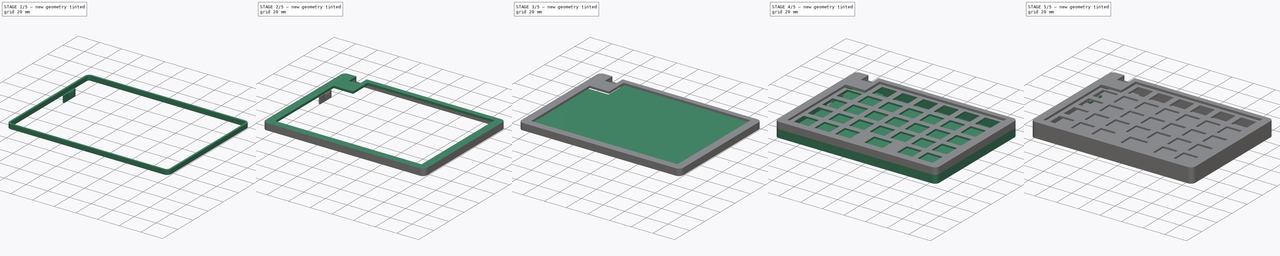
[diagram: build sequence overview — one tinted view per stage of 5, left to right]
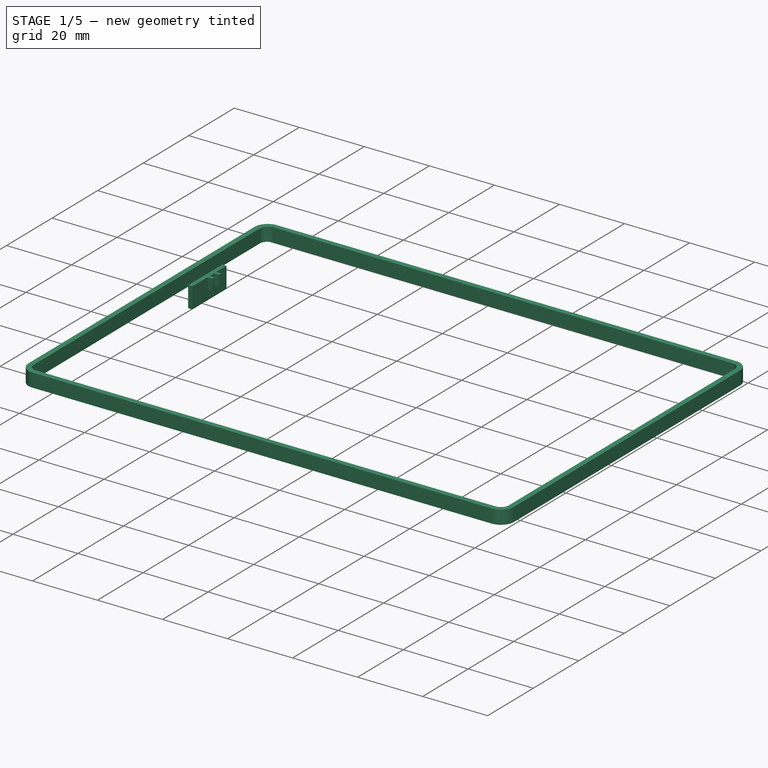
[diagram: stage 1 of 5 — iso view after this stage's code; geometry added in this stage tinted green]
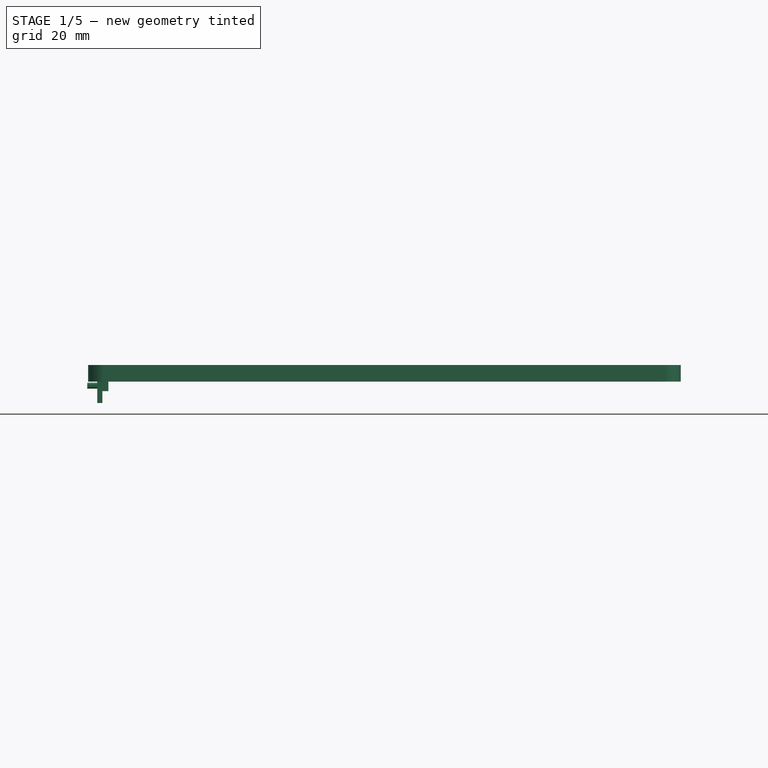
[diagram: stage 1 of 5 — front view after this stage's code; geometry added in this stage tinted green]
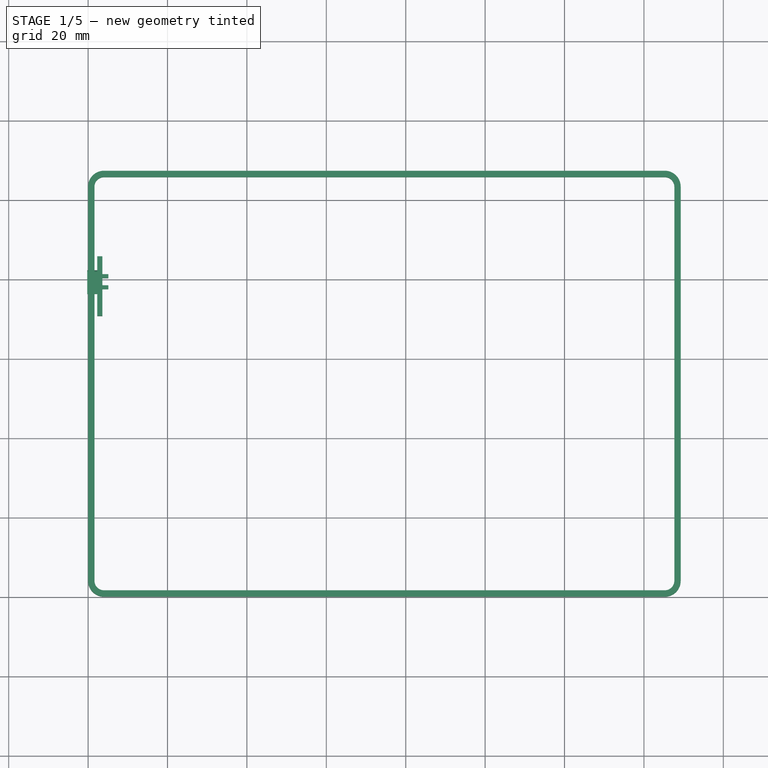
[diagram: stage 1 of 5 — top view after this stage's code; geometry added in this stage tinted green]
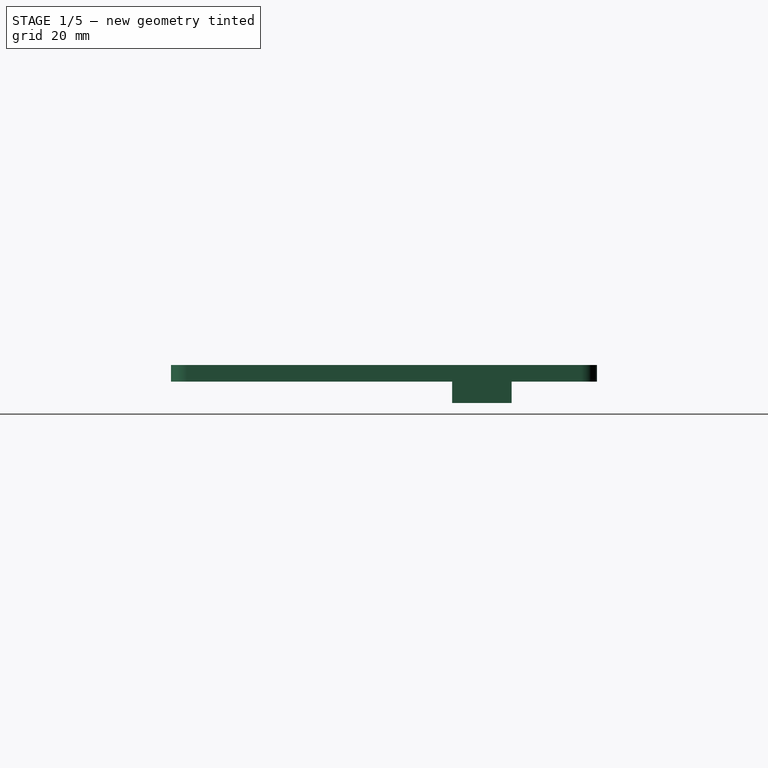
[diagram: stage 1 of 5 — right view after this stage's code; geometry added in this stage tinted green]
FCSTD DOCUMENT  (FreeCAD 1.0R39109 (Git))
Label: left_v3
License: All rights reserved
LicenseURL: https://en.wikipedia.org/wiki/All_rights_reserved
objects: Sketcher::SketchObject×21, PartDesign::Pad×13, Measure::MeasureDistance×11, PartDesign::Pocket×8, PartDesign::Body×4, PartDesign::Chamfer×3, Measure::MeasureLength×2, PartDesign::Fillet×1, App::DocumentObjectGroup×1
note: 121 computed .brp shape members not serialized (recipe doc carries the construction recipe); baked Part::Feature solids carry a one-line shape summary decoded from their .brp

FEATURE [Sketcher::SketchObject] Sketch011
  ArcFitTolerance = 1e-06
  AttachmentOffset = pos=(0,0,7.4) rot=(0,0,1;0rad)
  AttachmentSupport = -> [XY_Plane002]
  FullyConstrained = true
  MakeInternals = false
  MapMode = 5
  Placement = pos=(0,0,7.4) rot=(0,0,1;0rad)
  sketch-geometry (16):
    g0: LineSegment StartX=149.26 StartY=103.29 StartZ=0 EndX=149.26 EndY=4 EndZ=0
    g1: LineSegment StartX=0 StartY=103.29 StartZ=0 EndX=0 EndY=4 EndZ=0
    g2: ArcOfCircle CenterX=4 CenterY=4 CenterZ=0 NormalX=0 NormalY=0 NormalZ=1 AngleXU=0 Radius=4 StartAngle=3.14159 EndAngle=4.71239
    g3: ArcOfCircle CenterX=4 CenterY=103.29 CenterZ=0 NormalX=0 NormalY=0 NormalZ=1 AngleXU=0 Radius=4 StartAngle=1.5708 EndAngle=3.14159
    g4: ArcOfCircle CenterX=145.26 CenterY=103.29 CenterZ=0 NormalX=0 NormalY=0 NormalZ=1 AngleXU=0 Radius=4 StartAngle=1.3e-15 EndAngle=1.5708
    g5: ArcOfCircle CenterX=145.26 CenterY=4 CenterZ=0 NormalX=0 NormalY=0 NormalZ=1 AngleXU=0 Radius=4 StartAngle=4.71239 EndAngle=6.28319
    g6: LineSegment StartX=4 StartY=107.29 StartZ=0 EndX=145.26 EndY=107.29 EndZ=0
    g7: LineSegment StartX=4 StartY=0 StartZ=0 EndX=145.26 EndY=-1.0671e-12 EndZ=0
    g8: LineSegment StartX=4 StartY=105.69 StartZ=0 EndX=145.26 EndY=105.69 EndZ=0
    g9: LineSegment StartX=147.66 StartY=103.29 StartZ=0 EndX=147.66 EndY=4 EndZ=0
    g10: LineSegment StartX=1.6 StartY=4 StartZ=0 EndX=1.6 EndY=103.29 EndZ=0
    g11: ArcOfCircle CenterX=4 CenterY=103.29 CenterZ=0 NormalX=0 NormalY=0 NormalZ=1 AngleXU=0 Radius=2.4 StartAngle=1.5708 EndAngle=3.14159
    g12: ArcOfCircle CenterX=145.26 CenterY=103.29 CenterZ=0 NormalX=0 NormalY=0 NormalZ=1 AngleXU=0 Radius=2.4 StartAngle=6.28318 EndAngle=7.85398
    g13: ArcOfCircle CenterX=145.26 CenterY=4 CenterZ=0 NormalX=0 NormalY=0 NormalZ=1 AngleXU=0 Radius=2.4 StartAngle=4.71239 EndAngle=6.28318
    g14: ArcOfCircle CenterX=4 CenterY=4 CenterZ=0 NormalX=0 NormalY=0 NormalZ=1 AngleXU=0 Radius=2.4 StartAngle=3.14159 EndAngle=4.71239
    g15: LineSegment StartX=4 StartY=1.6 StartZ=0 EndX=145.26 EndY=1.6 EndZ=0
  constraints (47):
    c: Vertical(g0)
    c: Vertical(g1)
    c: Radius(g3) = 4
    c: Radius(g2) = 4
    c: Radius(g5) = 4
    c: Radius(g4) = 4
    c: Tangent(g3,g1) = -1.5708
    c: Tangent(g2,g1) = -1.5708
    c: Tangent(g5,g0) = 1.5708
    c: Tangent(g4,g0) = 1.5708
    c: DistanceX(g3,g4) = 141.26
    c: DistanceY(g1,g1) = 99.29
    c: DistanceX(g-1,g1) = 0
    c: Coincident(g6,g3)
    c: Horizontal(g6)
    c: DistanceX(g2,g5) = 141.26
    c: Tangent(g6,g4) = 1.5708
    c: DistanceY(g5,g4) = 107.29
    c: PointOnObject(g2,g-1)
    c: Coincident(g7,g2)
    c: Coincident(g7,g5)
    c: Angle(g2) = 1.5708
    c: Angle(g5) = 1.5708
    c: Horizontal(g8)
    c: Equal(g6,g8)
    c: DistanceY(g8,g4) = 1.6
    c: Vertical(g9)
    c: Equal(g9,g0)
    c: DistanceX(g9,g0) = 1.6
    c: Vertical(g10)
    c: DistanceX(g1,g10) = 1.6
    c: DistanceY(g10,g1) = 0
    c: Coincident(g11,g3)
    c: Coincident(g11,g10)
    c: Coincident(g11,g8)
    c: Coincident(g12,g4)
    c: Coincident(g12,g8)
    c: Coincident(g9,g12)
    c: Angle(g13) = 1.5708
    c: Coincident(g13,g5)
    c: Coincident(g13,g9)
    c: Equal(g10,g1)
    c: Angle(g14) = 1.5708
    c: Coincident(g14,g2)
    c: Coincident(g14,g10)
    c: Coincident(g15,g14)
    c: Coincident(g15,g13)
FEATURE [PartDesign::Pad] Pad005
  Direction = (0,0,1)
  Length = 4.2
  Length2 = 10
  Profile = -> Sketch011
  ReferenceAxis = -> Sketch011 [N_Axis]
  Refine = true
  Suppressed = false
  Type = 0
FEATURE [PartDesign::Body] Body002  label="TopCover"
  AllowCompound = false
  Group = -> [Sketch011,Pad005,Sketch012,Pad006,Sketch014,Pocket006,Sketch015,Pocket007,Sketch016,Pad007,Chamfer,Sketch017,Pad008,Chamfer001,Sketch018,Pad009,Chamfer002]
  Origin = -> Origin002
  Tip = -> Chamfer002
FEATURE [Sketcher::SketchObject] Sketch019
  ArcFitTolerance = 1e-06
  AttachmentOffset = pos=(0,0,3.6) rot=(0,0,1;0rad)
  AttachmentSupport = -> [YZ_Plane003]
  FullyConstrained = true
  MakeInternals = false
  MapMode = 5
  Placement = pos=(3.6,0,0) rot=(0.57735,0.57735,0.57735;2.0944rad)
  sketch-geometry (4):
    g0: LineSegment StartX=85.8 StartY=8.4 StartZ=0 EndX=70.8 EndY=8.4 EndZ=0
    g1: LineSegment StartX=70.8 StartY=8.4 StartZ=0 EndX=70.8 EndY=2 EndZ=0
    g2: LineSegment StartX=70.8 StartY=2 StartZ=0 EndX=85.8 EndY=2 EndZ=0
    g3: LineSegment StartX=85.8 StartY=2 StartZ=0 EndX=85.8 EndY=8.4 EndZ=0
  constraints (12):
    c: Coincident(g0,g1)
    c: Coincident(g1,g2)
    c: Coincident(g2,g3)
    c: Coincident(g3,g0)
    c: Horizontal(g0)
    c: Horizontal(g2)
    c: Vertical(g1)
    c: Vertical(g3)
    c: DistanceY(g-1,g1) = 2
    c: DistanceX(g1,g2) = 15
    c: DistanceX(g-1,g1) = 70.8
    c: DistanceY(g2,g0) = 6.4
FEATURE [PartDesign::Pad] Pad010
  Direction = (1,0,0)
  Length = 1.3
  Length2 = 10
  Placement = pos=(0,0,0) rot=(1,1,1;2.0944rad)
  Profile = -> Sketch019
  ReferenceAxis = -> Sketch019 [N_Axis]
  Refine = true
  Reversed = true
  Suppressed = false
  Type = 0
FEATURE [Sketcher::SketchObject] Sketch020
  ArcFitTolerance = 1e-06
  AttachmentSupport = -> [Pad010]
  ExternalGeometry = -> [Pad010]
  FullyConstrained = true
  MakeInternals = false
  MapMode = 5
  Placement = pos=(2.3,-5e-16,3e-16) rot=(0.57735,0.57735,-0.57735;4.18879rad)
  sketch-geometry (4):
    g0: LineSegment StartX=82.3 StartY=-7.15 StartZ=0 EndX=82.3 EndY=-5.65 EndZ=0
    g1: LineSegment StartX=82.3 StartY=-5.65 StartZ=0 EndX=76.3 EndY=-5.65 EndZ=0
    g2: LineSegment StartX=76.3 StartY=-5.65 StartZ=0 EndX=76.3 EndY=-7.15 EndZ=0
    g3: LineSegment StartX=76.3 StartY=-7.15 StartZ=0 EndX=82.3 EndY=-7.15 EndZ=0
  constraints (12):
    c: Coincident(g0,g1)
    c: Coincident(g1,g2)
    c: Coincident(g2,g3)
    c: Coincident(g3,g0)
    c: Vertical(g0)
    c: Vertical(g2)
    c: Horizontal(g1)
    c: Horizontal(g3)
    c: Distance(g0,g2) = 6
    c: Distance(g1,g3) = 1.5
    c: DistanceY(g-3,g0) = 1.25
    c: DistanceX(g0,g-3) = 3.5
FEATURE [PartDesign::Pad] Pad011
  BaseFeature = -> Pad010
  Direction = (-1,0,0)
  Length = 2.5
  Length2 = 10
  Placement = pos=(0,0,0) rot=(1,1,1;2.0944rad)
  Profile = -> Sketch020
  ReferenceAxis = -> Sketch020 [N_Axis]
  Refine = true
  Suppressed = false
  Type = 0
FEATURE [Sketcher::SketchObject] Sketch021
  ArcFitTolerance = 1e-06
  AttachmentSupport = -> [Pad011]
  ExternalGeometry = -> [Pad011]
  FullyConstrained = true
  MakeInternals = false
  MapMode = 5
  Placement = pos=(3.6,-1.6e-15,8e-16) rot=(0.57735,0.57735,0.57735;2.0944rad)
  sketch-geometry (9):
    g0: LineSegment StartX=77.5 StartY=8.4 StartZ=0 EndX=77.5 EndY=5 EndZ=0
    g1: LineSegment StartX=77.5 StartY=5 StartZ=0 EndX=78.5 EndY=5 EndZ=0
    g2: LineSegment StartX=78.5 StartY=5 StartZ=0 EndX=78.5 EndY=8.4 EndZ=0
    g3: LineSegment StartX=78.5 StartY=8.4 StartZ=0 EndX=77.5 EndY=8.4 EndZ=0
    g4: LineSegment StartX=80.3 StartY=8.4 StartZ=0 EndX=80.3 EndY=5 EndZ=0
    g5: LineSegment StartX=80.3 StartY=5 StartZ=0 EndX=81.3 EndY=5 EndZ=0
    g6: LineSegment StartX=81.3 StartY=5 StartZ=0 EndX=81.3 EndY=8.4 EndZ=0
    g7: LineSegment StartX=81.3 StartY=8.4 StartZ=0 EndX=80.3 EndY=8.4 EndZ=0
    g8: LineSegment [constr] StartX=78.5 StartY=8.4 StartZ=0 EndX=80.3 EndY=8.4 EndZ=0
  constraints (26):
    c: Coincident(g0,g1)
    c: Coincident(g1,g2)
    c: Coincident(g2,g3)
    c: Coincident(g3,g0)
    c: Vertical(g0)
    c: Vertical(g2)
    c: Horizontal(g1)
    c: Horizontal(g3)
    c: Coincident(g4,g5)
    c: Coincident(g5,g6)
    c: Coincident(g6,g7)
    c: Coincident(g7,g4)
    c: Vertical(g4)
    c: Vertical(g6)
    c: Horizontal(g5)
    c: Horizontal(g7)
    c: Equal(g2,g4)
    c: Coincident(g8,g2)
    c: Coincident(g8,g4)
    c: Horizontal(g8)
    c: DistanceX(g0,g2) = 1
    c: Equal(g7,g3)
    c: DistanceX(g2,g4) = 1.8
    c: DistanceX(g4,g-5) = 5.5
    c: PointOnObject(g6,g-3)
    c: DistanceY(g-5,g5) = 3
FEATURE [PartDesign::Pad] Pad012
  BaseFeature = -> Pad011
  Direction = (1,0,0)
  Length = 1.5
  Length2 = 10
  Placement = pos=(0,0,0) rot=(1,1,1;2.0944rad)
  Profile = -> Sketch021
  ReferenceAxis = -> Sketch021 [N_Axis]
  Refine = true
  Suppressed = false
  Type = 0
FEATURE [PartDesign::Fillet] Fillet
  Base = -> Pad012 [Edge41,Edge44,Edge46,Edge42]
  BaseFeature = -> Pad012
  Placement = pos=(0,0,0) rot=(1,1,1;2.0944rad)
  Radius = 0.5
  Refine = true
  SupportTransform = false
  Suppressed = false
  UseAllEdges = false
FEATURE [PartDesign::Body] Body003  label="Switch"
  AllowCompound = false
  Group = -> [Sketch019,Pad010,Sketch020,Pad011,Sketch021,Pad012,Fillet]
  Origin = -> Origin003
  Tip = -> Fillet
FEATURE [Measure::MeasureDistance] Distance001  label="Distance001: 5.29 mm"
  Distance = 5.29
  DistanceX = 0
  DistanceY = 5.29
  DistanceZ = 1.8e-15
  Element1 = -> Body001 [Pocket005.Edge153]
  Element2 = -> Body001 [Pocket005.Edge279]
  Position1 = (67.655,104.99,11.5)
  Position2 = (67.655,99.7,11.5)
FEATURE [Measure::MeasureDistance] Distance002  label="Distance002: 7.30 mm"
  Distance = 7.3
  DistanceX = 0
  DistanceY = 7.3
  DistanceZ = 1.8e-15
  Element1 = -> Body001 [Pocket005.Edge156]
  Element2 = -> Body001 [Pocket005.Edge186]
  Position1 = (75.555,2.3,11.5)
  Position2 = (75.555,9.6,11.5)
FEATURE [Measure::MeasureDistance] Distance003  label="Distance003: 8.20 mm"
  Distance = 8.205
  DistanceX = 8.205
  DistanceY = 0
  DistanceZ = 1.8e-15
  Element1 = -> Body001 [Pocket005.Edge211]
  Element2 = -> Body001 [Pocket005.Edge159]
  Position1 = (138.755,42.55,11.5)
  Position2 = (146.96,42.55,11.5)
FEATURE [Measure::MeasureDistance] Distance004  label="Distance004: 8.20 mm"
  Distance = 8.205
  DistanceX = 8.205
  DistanceY = 3.6e-15
  DistanceZ = 1.8e-15
  Element1 = -> Body001 [Pocket005.Edge7]
  Element2 = -> Body001 [Pocket005.Edge174]
  Position1 = (2.3,28.6,11.5)
  Position2 = (10.505,28.6,11.5)
FEATURE [Measure::MeasureDistance] Distance005  label="Distance005: 144.66 mm"
  Distance = 144.66
  DistanceX = 144.66
  DistanceY = 0
  DistanceZ = 0
  Element1 = -> Body001 [Pocket005.Edge7]
  Element2 = -> Body001 [Pocket005.Edge159]
  Position1 = (2.3,4.55,11.5)
  Position2 = (146.96,4.55,11.5)
FEATURE [Measure::MeasureLength] Length  label="Length: 22.50 mm"
  Elements = -> [Body001]
  Length = 22.5
FEATURE [Measure::MeasureLength] Length001  label="Length001: 23.00 mm"
  Elements = -> [Body001]
  Length = 23
FEATURE [Measure::MeasureDistance] Distance006  label="Distance006: 4.60 mm"
  Distance = 4.6
  DistanceX = 0
  DistanceY = 4.6
  DistanceZ = 0
  Element1 = -> Body002 [Chamfer002.Edge154]
  Element2 = -> Body002 [Chamfer002.Edge109]
  Position1 = (25.1,102.69,13.6)
  Position2 = (25.1,107.29,13.6)
FEATURE [Measure::MeasureDistance] Distance007  label="Distance007: 6.60 mm"
  Distance = 6.6
  DistanceX = 0
  DistanceY = 6.6
  DistanceZ = 0
  Element1 = -> Body002 [Chamfer002.Edge121]
  Element2 = -> Body002 [Chamfer002.Edge158]
  Position1 = (7.05,-1.0671e-12,13.6)
  Position2 = (7.05,6.6,13.6)
FEATURE [Measure::MeasureDistance] Distance008  label="Distance008: 7.05 mm"
  Distance = 7.05
  DistanceX = 7.05
  DistanceY = 0
  DistanceZ = 0
  Element1 = -> Body002 [Chamfer002.Edge159]
  Element2 = -> Body002 [Chamfer002.Edge125]
  Position1 = (7.05,83.63,13.6)
  Position2 = (0,83.63,13.6)
FEATURE [Measure::MeasureDistance] Distance009  label="Distance009: 7.05 mm"
  Distance = 7.05
  DistanceX = 7.05
  DistanceY = 1.42e-14
  DistanceZ = 0
  Element1 = -> Body002 [Chamfer002.Edge156]
  Element2 = -> Body002 [Chamfer002.Edge117]
  Position1 = (142.21,102.69,13.6)
  Position2 = (149.26,102.69,13.6)
FEATURE [Measure::MeasureDistance] Distance010  label="Distance010: 4.25 mm"
  Distance = 4.255
  DistanceX = 4.255
  DistanceY = 0
  DistanceZ = 1.8e-15
  Element1 = -> Body001 [Pocket005.Edge240]
  Element2 = -> Body001 [Pocket005.Edge10]
  Position1 = (29.555,85.75,11.5)
  Position2 = (25.3,85.75,11.5)
FEATURE [App::DocumentObjectGroup] Measurements
  Group = -> [Distance,Distance001,Distance002,Distance003,Distance004,Distance005,Length,Length001,Distance006,Distance007,Distance008,Distance009,Distance010]
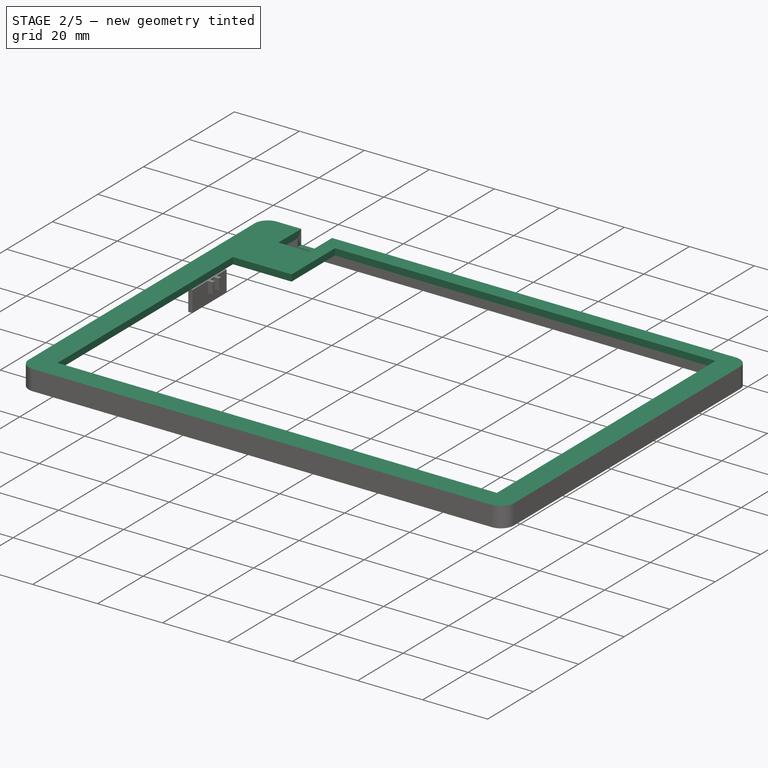
[diagram: stage 2 of 5 — iso view after this stage's code; geometry added in this stage tinted green]
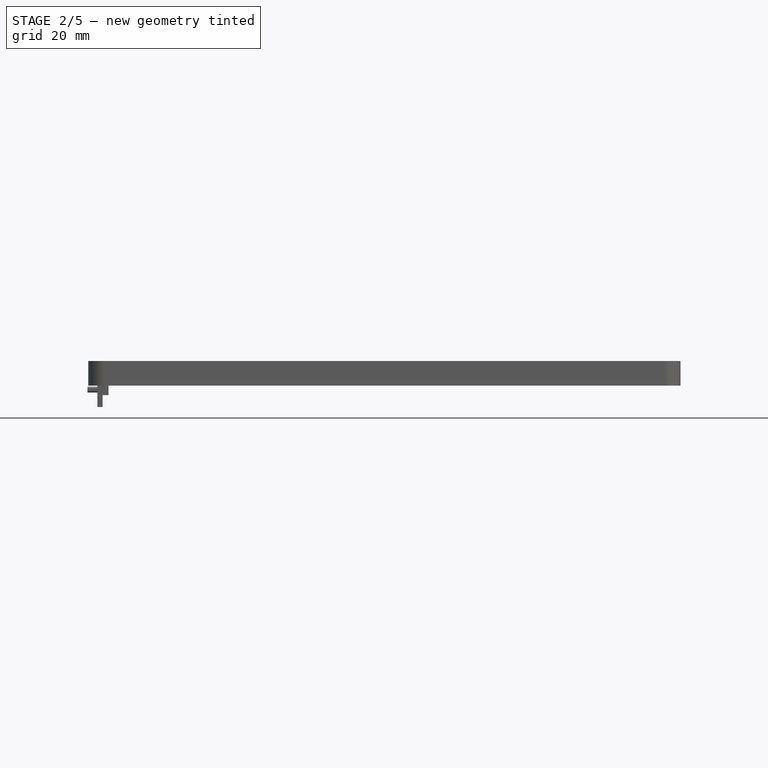
[diagram: stage 2 of 5 — front view after this stage's code; geometry added in this stage tinted green]
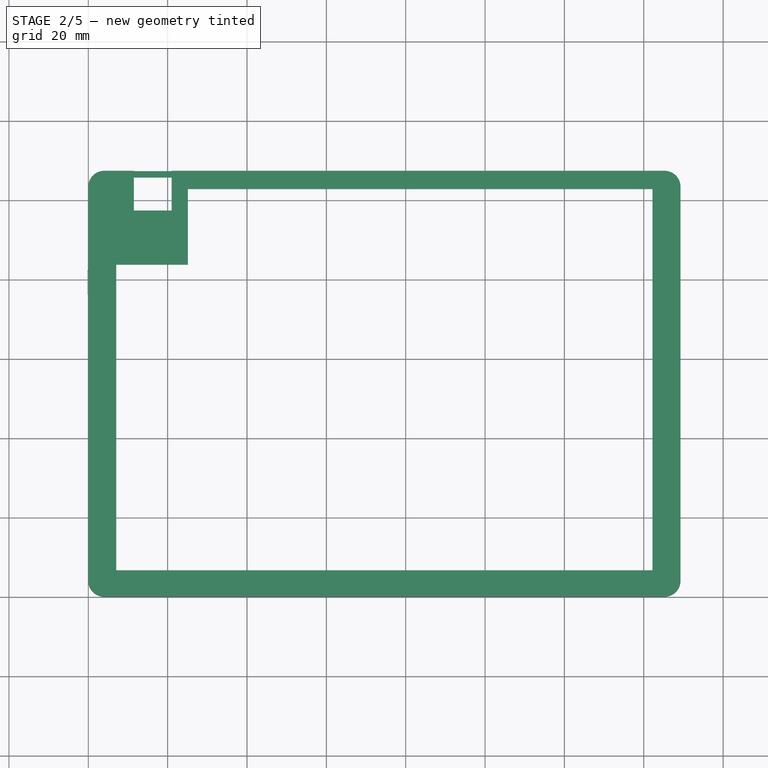
[diagram: stage 2 of 5 — top view after this stage's code; geometry added in this stage tinted green]
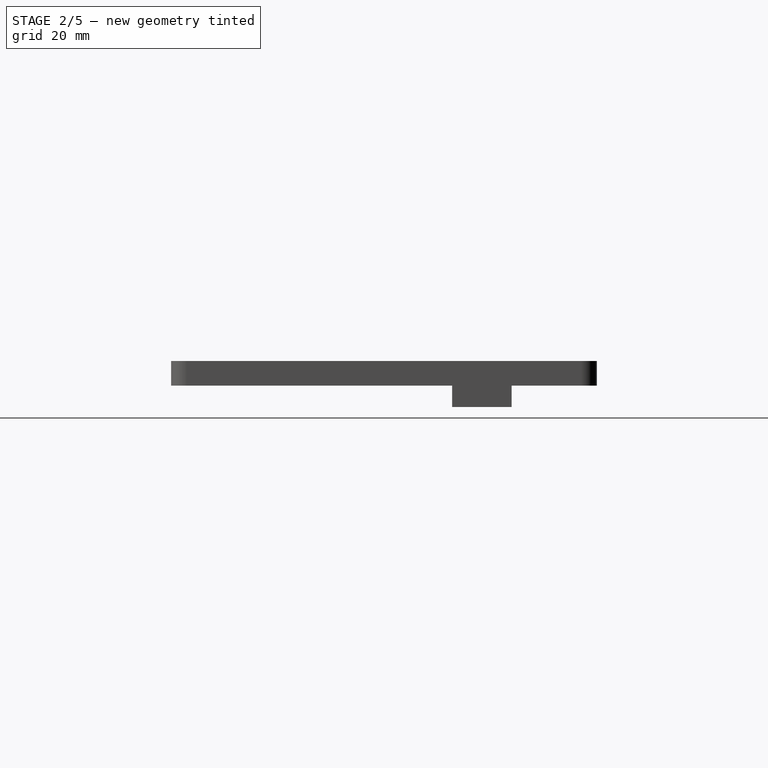
[diagram: stage 2 of 5 — right view after this stage's code; geometry added in this stage tinted green]
FEATURE [Sketcher::SketchObject] Sketch012
  ArcFitTolerance = 1e-06
  AttachmentSupport = -> [Pad005]
  ExternalGeometry = -> [Pad005]
  FullyConstrained = true
  MakeInternals = false
  MapMode = 5
  Placement = pos=(0,0,11.6) rot=(0,0,1;0rad)
  sketch-geometry (14):
    g0: LineSegment StartX=4 StartY=107.29 StartZ=0 EndX=145.26 EndY=107.29 EndZ=0
    g1: ArcOfCircle CenterX=4 CenterY=103.29 CenterZ=0 NormalX=0 NormalY=0 NormalZ=1 AngleXU=0 Radius=4 StartAngle=1.5708 EndAngle=3.14159
    g2: LineSegment StartX=0 StartY=103.29 StartZ=0 EndX=0 EndY=4 EndZ=0
    g3: ArcOfCircle CenterX=4 CenterY=4 CenterZ=0 NormalX=0 NormalY=0 NormalZ=1 AngleXU=0 Radius=4 StartAngle=3.14159 EndAngle=4.71239
    g4: LineSegment StartX=4 StartY=2.967e-13 StartZ=0 EndX=145.26 EndY=2.967e-13 EndZ=0
    g5: ArcOfCircle CenterX=145.26 CenterY=4 CenterZ=0 NormalX=0 NormalY=0 NormalZ=1 AngleXU=0 Radius=4 StartAngle=4.71239 EndAngle=6.28319
    g6: ArcOfCircle CenterX=145.26 CenterY=103.29 CenterZ=0 NormalX=0 NormalY=0 NormalZ=1 AngleXU=0 Radius=4 StartAngle=6.28318 EndAngle=7.85398
    g7: LineSegment StartX=26.1 StartY=102.69 StartZ=0 EndX=142.21 EndY=102.69 EndZ=0
    g8: LineSegment StartX=142.21 StartY=102.69 StartZ=0 EndX=142.21 EndY=6.6 EndZ=0
    g9: LineSegment StartX=142.21 StartY=6.6 StartZ=0 EndX=7.05 EndY=6.6 EndZ=0
    g10: LineSegment StartX=7.05 StartY=6.6 StartZ=0 EndX=7.05 EndY=82.63 EndZ=0
    g11: LineSegment StartX=7.05 StartY=82.63 StartZ=0 EndX=26.1 EndY=82.63 EndZ=0
    g12: LineSegment StartX=26.1 StartY=82.63 StartZ=0 EndX=26.1 EndY=102.69 EndZ=0
    g13: LineSegment StartX=149.26 StartY=103.29 StartZ=0 EndX=149.26 EndY=4 EndZ=0
  constraints (39):
    c: Angle(g1) = 1.5708
    c: Coincident(g1,g-4)
    c: Coincident(g1,g0)
    c: Coincident(g1,g-5)
    c: Coincident(g2,g1)
    c: Coincident(g2,g-6)
    c: Coincident(g3,g-6)
    c: Coincident(g3,g2)
    c: Coincident(g4,g3)
    c: Coincident(g4,g-8)
    c: Horizontal(g4)
    c: Coincident(g5,g-8)
    c: Coincident(g5,g4)
    c: Coincident(g6,g-10)
    c: Coincident(g6,g0)
    c: Angle(g6) = 1.5708
    c: Angle(g5) = 1.5708
    c: Radius(g6) = 4
    c: Horizontal(g0)
    c: Horizontal(g7)
    c: DistanceY(g7,g0) = 4.6
    c: Vertical(g8)
    c: DistanceX(g8,g6) = 7.05
    c: Coincident(g7,g8)
    c: Coincident(g9,g8)
    c: Horizontal(g9)
    c: DistanceY(g4,g8) = 6.6
    c: Coincident(g10,g9)
    c: Vertical(g10)
    c: DistanceX(g2,g9) = 7.05
    c: DistanceY(g10,g7) = 20.06
    c: DistanceX(g10,g7) = 19.05
    c: Coincident(g10,g11)
    c: Horizontal(g11)
    c: Coincident(g11,g12)
    c: Coincident(g12,g7)
    c: Vertical(g12)
    c: Coincident(g13,g6)
    c: Coincident(g13,g5)
FEATURE [PartDesign::Pad] Pad006
  BaseFeature = -> Pad005
  Direction = (0,0,1)
  Length = 2
  Length2 = 10
  Profile = -> Sketch012
  ReferenceAxis = -> Sketch012 [N_Axis]
  Refine = true
  Suppressed = false
  Type = 0
FEATURE [PartDesign::Body] Body001  label="TopPlate"
  AllowCompound = false
  Group = -> [Sketch008,Pad004,Sketch010,Pocket004,Sketch013,Pocket005]
  Origin = -> Origin001
  Tip = -> Pocket005
FEATURE [Sketcher::SketchObject] Sketch014
  ArcFitTolerance = 1e-06
  AttachmentSupport = -> [Pad006]
  ExternalGeometry = -> [Pad006]
  FullyConstrained = true
  MakeInternals = false
  MapMode = 5
  Placement = pos=(0,0,13.6) rot=(0,0,1;0rad)
  sketch-geometry (4):
    g0: LineSegment StartX=11 StartY=107.29 StartZ=0 EndX=11 EndY=97.29 EndZ=0
    g1: LineSegment StartX=11 StartY=97.29 StartZ=0 EndX=20.5 EndY=97.29 EndZ=0
    g2: LineSegment StartX=20.5 StartY=97.29 StartZ=0 EndX=20.5 EndY=107.29 EndZ=0
    g3: LineSegment StartX=20.5 StartY=107.29 StartZ=0 EndX=11 EndY=107.29 EndZ=0
  constraints (12):
    c: Coincident(g0,g1)
    c: Coincident(g1,g2)
    c: Coincident(g2,g3)
    c: Coincident(g3,g0)
    c: Vertical(g0)
    c: Vertical(g2)
    c: Horizontal(g1)
    c: Horizontal(g3)
    c: Distance(g0,g2) = 9.5
    c: Distance(g1,g3) = 10
    c: PointOnObject(g0,g-4)
    c: DistanceX(g-3,g0) = 11
FEATURE [PartDesign::Pocket] Pocket006
  BaseFeature = -> Pad006
  Direction = (0,0,-1)
  Length = 4.4
  Length2 = 5
  Profile = -> Sketch014
  ReferenceAxis = -> Sketch014 [N_Axis]
  Refine = true
  Suppressed = false
  Type = 0
FEATURE [Sketcher::SketchObject] Sketch015
  ArcFitTolerance = 1e-06
  AttachmentSupport = -> [Pocket006]
  ExternalGeometry = -> [Pocket006]
  FullyConstrained = true
  MakeInternals = false
  MapMode = 5
  Placement = pos=(0,0,11.6) rot=(1,0,0;3.14159rad)
  sketch-geometry (5):
    g0: LineSegment StartX=7.75 StartY=-85.29 StartZ=0 EndX=7.75 EndY=-97.29 EndZ=0
    g1: LineSegment StartX=7.75 StartY=-97.29 StartZ=0 EndX=24.75 EndY=-97.29 EndZ=0
    g2: LineSegment StartX=24.75 StartY=-97.29 StartZ=0 EndX=24.75 EndY=-85.29 EndZ=0
    g3: LineSegment StartX=24.75 StartY=-85.29 StartZ=0 EndX=7.75 EndY=-85.29 EndZ=0
    g4: GeomPoint [constr] X=16.25 Y=-97.29 Z=0
  constraints (12):
    c: Coincident(g0,g1)
    c: Coincident(g1,g2)
    c: Coincident(g2,g3)
    c: Coincident(g3,g0)
    c: Vertical(g0)
    c: Vertical(g2)
    c: Horizontal(g1)
    c: Horizontal(g3)
    c: Distance(g0,g2) = 17
    c: Distance(g1,g3) = 12
    c: Symmetric(g1,g1,g4)
    c: Symmetric(g-3,g-3,g4)
FEATURE [PartDesign::Pocket] Pocket007
  BaseFeature = -> Pocket006
  Direction = (0,0,1)
  Length = 1
  Length2 = 5
  Profile = -> Sketch015
  ReferenceAxis = -> Sketch015 [N_Axis]
  Refine = true
  Suppressed = false
  Type = 0
FEATURE [Sketcher::SketchObject] Sketch016
  ArcFitTolerance = 1e-06
  AttachmentOffset = pos=(0,0,-1.6) rot=(0,0,1;0rad)
  AttachmentSupport = -> [Pocket007]
  ExternalGeometry = -> [Pocket007]
  FullyConstrained = true
  MakeInternals = false
  MapMode = 5
  Placement = pos=(147.66,-1.656e-13,2.6876e-12) rot=(0.57735,0.57735,0.57735;2.0944rad)
  sketch-geometry (8):
    g0: LineSegment StartX=9.05 StartY=7.4 StartZ=0 EndX=13.55 EndY=7.4 EndZ=0
    g1: LineSegment StartX=13.55 StartY=7.4 StartZ=0 EndX=13.55 EndY=8.4 EndZ=0
    g2: LineSegment StartX=13.55 StartY=8.4 StartZ=0 EndX=9.05 EndY=8.4 EndZ=0
    g3: LineSegment StartX=9.05 StartY=8.4 StartZ=0 EndX=9.05 EndY=7.4 EndZ=0
    g4: LineSegment StartX=93.74 StartY=7.4 StartZ=0 EndX=98.24 EndY=7.4 EndZ=0
    g5: LineSegment StartX=98.24 StartY=7.4 StartZ=0 EndX=98.24 EndY=8.4 EndZ=0
    g6: LineSegment StartX=98.24 StartY=8.4 StartZ=0 EndX=93.74 EndY=8.4 EndZ=0
    g7: LineSegment StartX=93.74 StartY=8.4 StartZ=0 EndX=93.74 EndY=7.4 EndZ=0
  constraints (24):
    c: Coincident(g0,g1)
    c: Coincident(g1,g2)
    c: Coincident(g2,g3)
    c: Coincident(g3,g0)
    c: Horizontal(g0)
    c: Horizontal(g2)
    c: Vertical(g1)
    c: Vertical(g3)
    c: Distance(g1,g3) = 4.5
    c: Distance(g0,g2) = 1
    c: PointOnObject(g0,g-3)
    c: DistanceX(g-4,g0) = 9.05
    c: Coincident(g4,g5)
    c: Coincident(g5,g6)
    c: Coincident(g6,g7)
    c: Coincident(g7,g4)
    c: Horizontal(g4)
    c: Horizontal(g6)
    c: Vertical(g5)
    c: Vertical(g7)
    c: Distance(g5,g7) = 4.5
    c: Distance(g4,g6) = 1
    c: PointOnObject(g4,g-3)
    c: DistanceX(g4,g-5) = 9.05
FEATURE [PartDesign::Pad] Pad007
  BaseFeature = -> Pocket007
  Direction = (1,-1e-15,1.81e-14)
  Length = 1
  Length2 = 10
  Profile = -> Sketch016
  ReferenceAxis = -> Sketch016 [N_Axis]
  Refine = true
  Reversed = true
  Suppressed = false
  Type = 0
FEATURE [PartDesign::Chamfer] Chamfer
  Angle = 45
  Base = -> Pad007 [Edge108,Edge107]
  BaseFeature = -> Pad007
  ChamferType = 0
  FlipDirection = false
  Refine = true
  Size = 0.99
  Size2 = 1
  SupportTransform = false
  Suppressed = false
  UseAllEdges = false
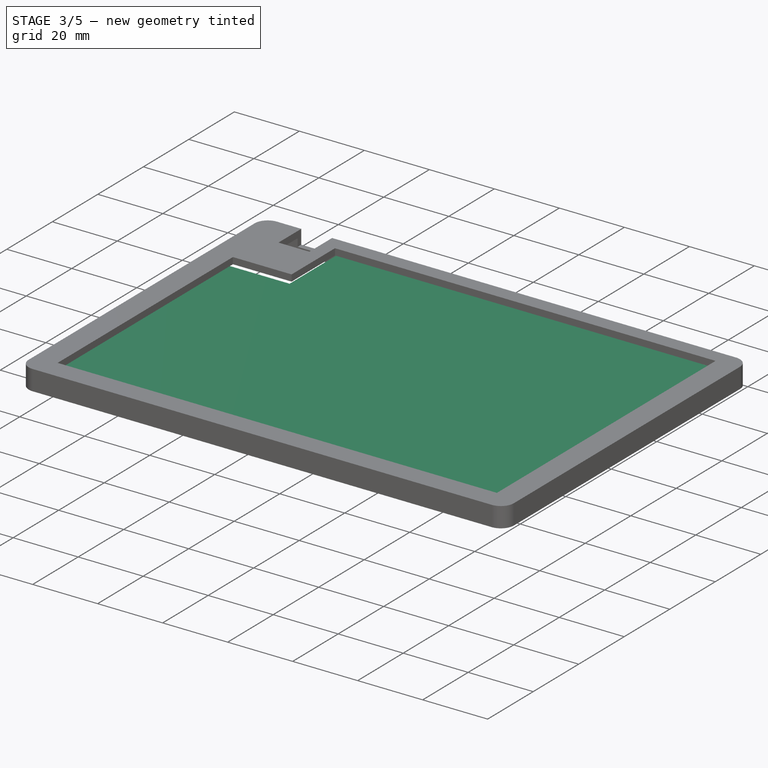
[diagram: stage 3 of 5 — iso view after this stage's code; geometry added in this stage tinted green]
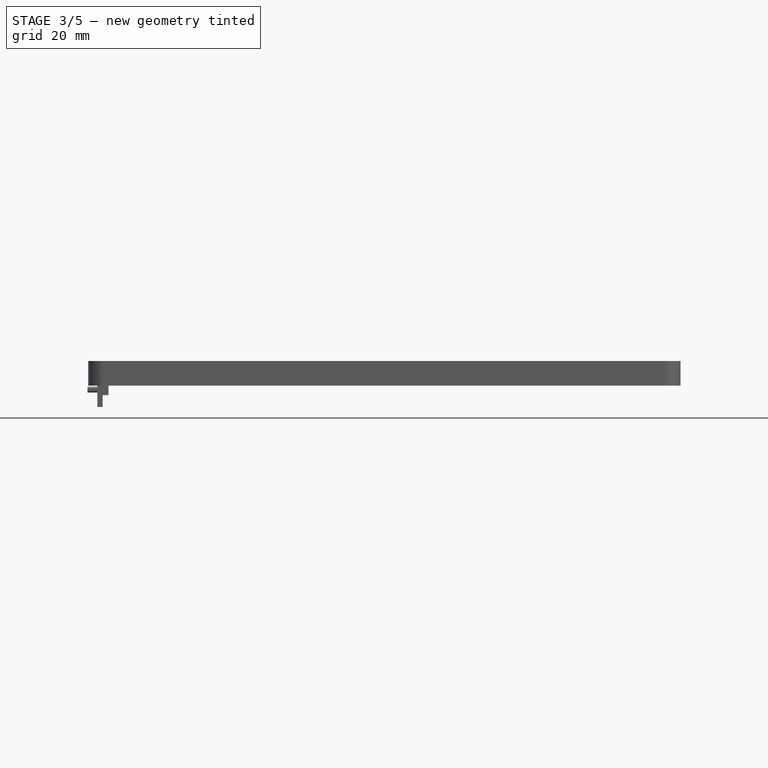
[diagram: stage 3 of 5 — front view after this stage's code; geometry added in this stage tinted green]
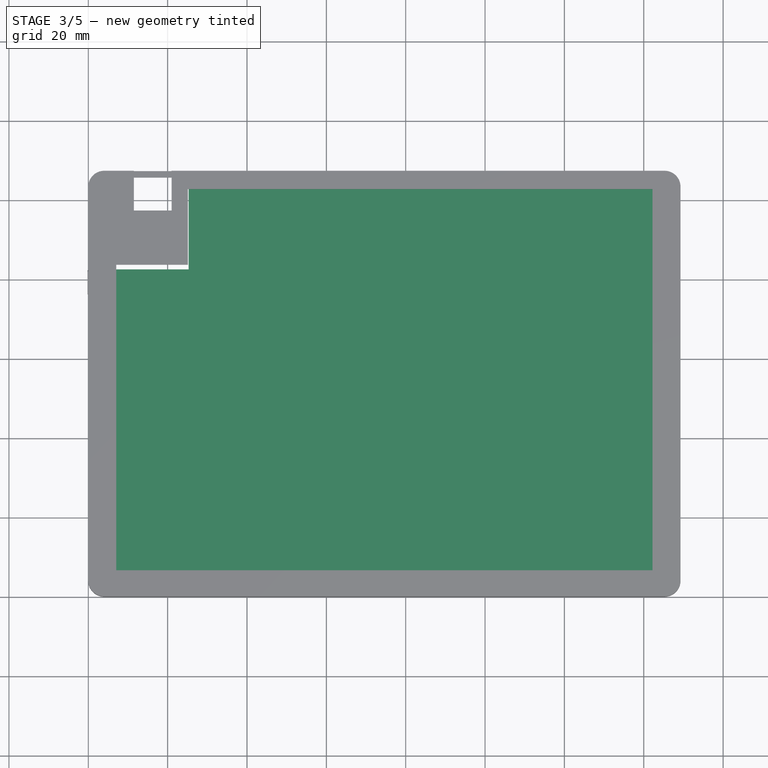
[diagram: stage 3 of 5 — top view after this stage's code; geometry added in this stage tinted green]
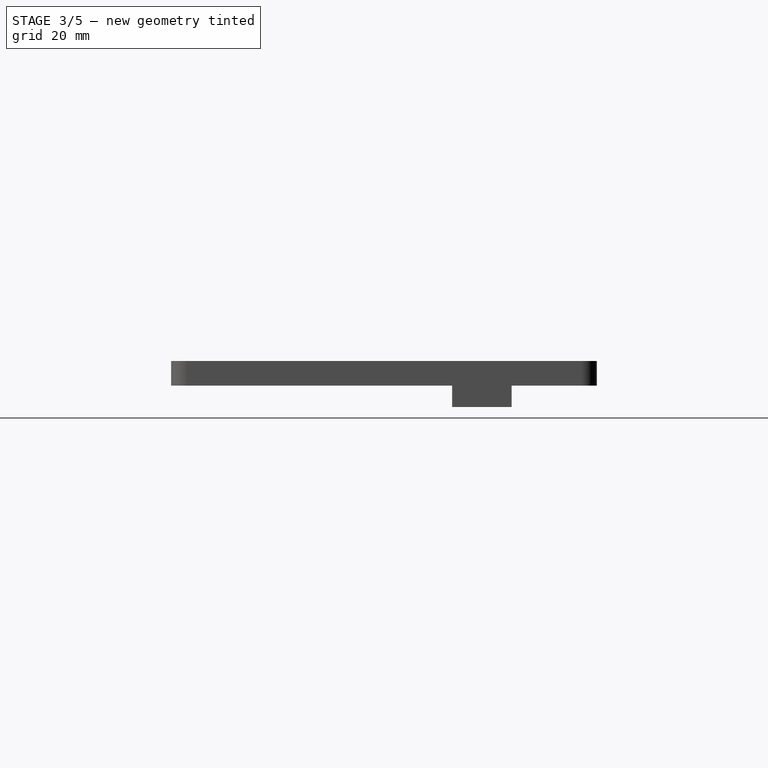
[diagram: stage 3 of 5 — right view after this stage's code; geometry added in this stage tinted green]
FEATURE [PartDesign::Body] Body  label="BottomCase"
  AllowCompound = false
  Group = -> [Sketch,Pad,Sketch001,Pad001,Sketch002,Pad002,Sketch003,Pocket,Sketch004,Pad003,Sketch005,Pocket001,Sketch006,Pocket002,Sketch007,Pocket003]
  Origin = -> Origin
  Tip = -> Pocket003
FEATURE [Sketcher::SketchObject] Sketch008
  ArcFitTolerance = 1e-06
  AttachmentOffset = pos=(0,0,9.9) rot=(0,0,1;0rad)
  AttachmentSupport = -> [XY_Plane001]
  FullyConstrained = true
  MakeInternals = false
  MapMode = 5
  Placement = pos=(0,0,9.9) rot=(0,0,1;0rad)
  sketch-geometry (12):
    g0: LineSegment StartX=25.3 StartY=104.99 StartZ=0 EndX=143.71 EndY=104.99 EndZ=0
    g1: LineSegment StartX=143.71 StartY=2.3 StartZ=0 EndX=5.55 EndY=2.3 EndZ=0
    g2: LineSegment StartX=146.96 StartY=102.74 StartZ=0 EndX=146.96 EndY=4.55 EndZ=0
    g3: LineSegment StartX=2.3 StartY=82.49 StartZ=0 EndX=2.3 EndY=4.55 EndZ=0
    g4: LineSegment StartX=146.96 StartY=4.55 StartZ=0 EndX=143.71 EndY=4.55 EndZ=0
    g5: LineSegment StartX=143.71 StartY=4.55 StartZ=0 EndX=143.71 EndY=2.3 EndZ=0
    g6: LineSegment StartX=2.3 StartY=4.55 StartZ=0 EndX=5.55 EndY=4.55 EndZ=0
    g7: LineSegment StartX=5.55 StartY=4.55 StartZ=0 EndX=5.55 EndY=2.3 EndZ=0
    g8: LineSegment StartX=143.71 StartY=104.99 StartZ=0 EndX=143.71 EndY=102.74 EndZ=0
    g9: LineSegment StartX=143.71 StartY=102.74 StartZ=0 EndX=146.96 EndY=102.74 EndZ=0
    g10: LineSegment StartX=2.3 StartY=82.49 StartZ=0 EndX=25.3 EndY=82.49 EndZ=0
    g11: LineSegment StartX=25.3 StartY=82.49 StartZ=0 EndX=25.3 EndY=104.99 EndZ=0
  constraints (36):
    c: Horizontal(g0)
    c: Horizontal(g1)
    c: Vertical(g2)
    c: Vertical(g3)
    c: DistanceY(g7,g0) = 102.69
    c: DistanceY(g-1,g7) = 2.3
    c: DistanceX(g3,g0) = 23
    c: DistanceY(g3,g0) = 22.5
    c: DistanceX(g3,g2) = 144.66
    c: DistanceX(g0,g2) = 3.25
    c: DistanceX(g1,g2) = 3.25
    c: DistanceY(g1,g2) = 2.25
    c: Coincident(g2,g4)
    c: Horizontal(g4)
    c: Coincident(g4,g5)
    c: Coincident(g5,g1)
    c: Vertical(g5)
    c: DistanceX(g3,g7) = 3.25
    c: Coincident(g3,g6)
    c: Horizontal(g6)
    c: Coincident(g6,g7)
    c: Vertical(g7)
    c: DistanceX(g-1,g3) = 2.3
    c: DistanceY(g7,g6) = 2.25
    c: DistanceY(g2,g0) = 2.25
    c: Coincident(g0,g8)
    c: Vertical(g8)
    c: Coincident(g8,g9)
    c: Coincident(g9,g2)
    c: Horizontal(g9)
    c: Coincident(g1,g7)
    c: Coincident(g3,g10)
    c: Horizontal(g10)
    c: Coincident(g10,g11)
    c: Coincident(g11,g0)
    c: Vertical(g11)
FEATURE [PartDesign::Pad] Pad004
  Direction = (0,0,1)
  Length = 1.6
  Length2 = 10
  Profile = -> Sketch008
  ReferenceAxis = -> Sketch008 [N_Axis]
  Refine = true
  Suppressed = false
  Type = 0
FEATURE [Sketcher::SketchObject] Sketch017
  ArcFitTolerance = 1e-06
  AttachmentOffset = pos=(0,0,-1.6) rot=(0,0,1;0rad)
  AttachmentSupport = -> [Chamfer]
  ExternalGeometry = -> [Chamfer]
  FullyConstrained = true
  MakeInternals = false
  MapMode = 5
  Placement = pos=(1.6,0,0) rot=(0.57735,-0.57735,-0.57735;2.0944rad)
  sketch-geometry (8):
    g0: LineSegment StartX=-51.79 StartY=7.4 StartZ=0 EndX=-51.79 EndY=8.4 EndZ=0
    g1: LineSegment StartX=-51.79 StartY=8.4 StartZ=0 EndX=-56.29 EndY=8.4 EndZ=0
    g2: LineSegment StartX=-56.29 StartY=8.4 StartZ=0 EndX=-56.29 EndY=7.4 EndZ=0
    g3: LineSegment StartX=-56.29 StartY=7.4 StartZ=0 EndX=-51.79 EndY=7.4 EndZ=0
    g4: LineSegment StartX=-13.55 StartY=7.4 StartZ=0 EndX=-9.05 EndY=7.4 EndZ=0
    g5: LineSegment StartX=-9.05 StartY=7.4 StartZ=0 EndX=-9.05 EndY=8.4 EndZ=0
    g6: LineSegment StartX=-9.05 StartY=8.4 StartZ=0 EndX=-13.55 EndY=8.4 EndZ=0
    g7: LineSegment StartX=-13.55 StartY=8.4 StartZ=0 EndX=-13.55 EndY=7.4 EndZ=0
  constraints (24):
    c: Coincident(g0,g1)
    c: Coincident(g1,g2)
    c: Coincident(g2,g3)
    c: Coincident(g3,g0)
    c: Vertical(g0)
    c: Vertical(g2)
    c: Horizontal(g1)
    c: Horizontal(g3)
    c: Distance(g0,g2) = 4.5
    c: Distance(g1,g3) = 1
    c: Coincident(g4,g5)
    c: Coincident(g5,g6)
    c: Coincident(g6,g7)
    c: Coincident(g7,g4)
    c: Horizontal(g4)
    c: Horizontal(g6)
    c: Vertical(g5)
    c: Vertical(g7)
    c: Distance(g5,g7) = 4.5
    c: Distance(g4,g6) = 1
    c: PointOnObject(g4,g-5)
    c: DistanceX(g4,g-4) = 9.05
    c: PointOnObject(g0,g-5)
    c: DistanceX(g-3,g2) = 51
FEATURE [PartDesign::Pad] Pad008
  BaseFeature = -> Chamfer
  Direction = (-1,0,0)
  Length = 1
  Length2 = 10
  Profile = -> Sketch017
  ReferenceAxis = -> Sketch017 [N_Axis]
  Refine = true
  Reversed = true
  Suppressed = false
  Type = 0
FEATURE [PartDesign::Chamfer] Chamfer001
  Angle = 45
  Base = -> Pad008 [Edge127,Edge126]
  BaseFeature = -> Pad008
  ChamferType = 0
  FlipDirection = false
  Refine = true
  Size = 0.99
  Size2 = 1
  SupportTransform = false
  Suppressed = false
  UseAllEdges = false
FEATURE [Measure::MeasureDistance] Distance  label="Distance: 102.69 mm"
  Distance = 102.69
  DistanceX = 0
  DistanceY = 102.69
  DistanceZ = 0
  Element1 = -> Body001 [Pocket005.Edge156]
  Element2 = -> Body001 [Pocket005.Edge153]
  Position1 = (143.71,2.3,11.5)
  Position2 = (143.71,104.99,11.5)
FEATURE [Sketcher::SketchObject] Sketch018
  ArcFitTolerance = 1e-06
  AttachmentOffset = pos=(0,0,-1.6) rot=(0,0,1;0rad)
  AttachmentSupport = -> [Chamfer001]
  ExternalGeometry = -> [Chamfer001]
  FullyConstrained = true
  MakeInternals = false
  MapMode = 5
  Placement = pos=(0,105.69,-1.07897e-11) rot=(0,0.707107,0.707107;3.14159rad)
  sketch-geometry (4):
    g0: LineSegment StartX=-39.55 StartY=7.4 StartZ=0 EndX=-35.05 EndY=7.4 EndZ=0
    g1: LineSegment StartX=-35.05 StartY=7.4 StartZ=0 EndX=-35.05 EndY=8.4 EndZ=0
    g2: LineSegment StartX=-35.05 StartY=8.4 StartZ=0 EndX=-39.55 EndY=8.4 EndZ=0
    g3: LineSegment StartX=-39.55 StartY=8.4 StartZ=0 EndX=-39.55 EndY=7.4 EndZ=0
  constraints (12):
    c: Coincident(g0,g1)
    c: Coincident(g1,g2)
    c: Coincident(g2,g3)
    c: Coincident(g3,g0)
    c: Horizontal(g0)
    c: Horizontal(g2)
    c: Vertical(g1)
    c: Vertical(g3)
    c: Distance(g1,g3) = 4.5
    c: Distance(g0,g2) = 1
    c: PointOnObject(g0,g-4)
    c: DistanceX(g0,g-3) = 35.05
FEATURE [PartDesign::Pad] Pad009
  BaseFeature = -> Chamfer001
  Direction = (0,1,0)
  Length = 1
  Length2 = 10
  Profile = -> Sketch018
  ReferenceAxis = -> Sketch018 [N_Axis]
  Refine = true
  Reversed = true
  Suppressed = false
  Type = 0
FEATURE [PartDesign::Chamfer] Chamfer002
  Angle = 45
  Base = -> Pad009 [Edge147]
  BaseFeature = -> Pad009
  ChamferType = 0
  FlipDirection = false
  Refine = true
  Size = 0.99
  Size2 = 1
  SupportTransform = false
  Suppressed = false
  UseAllEdges = false
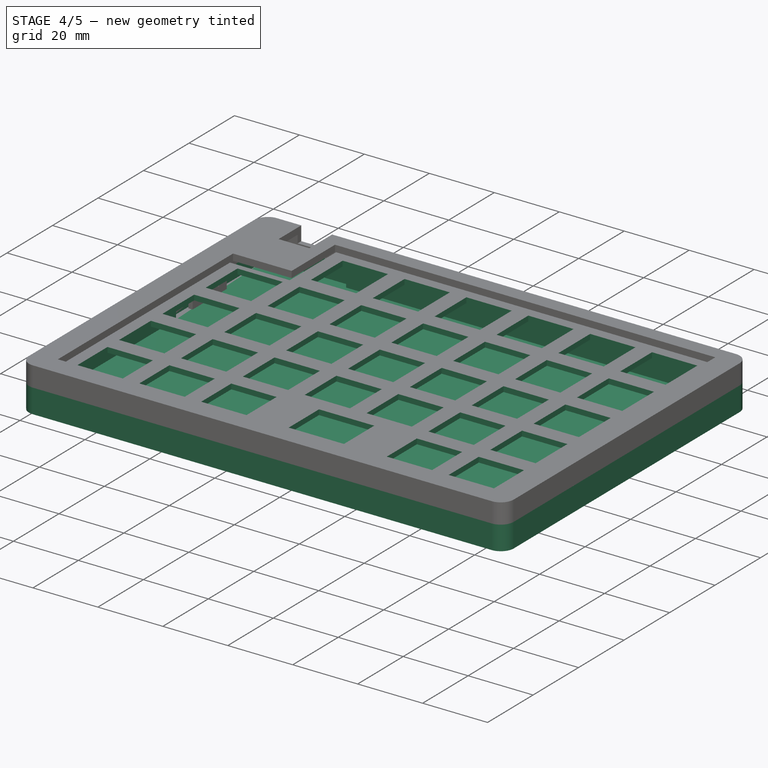
[diagram: stage 4 of 5 — iso view after this stage's code; geometry added in this stage tinted green]
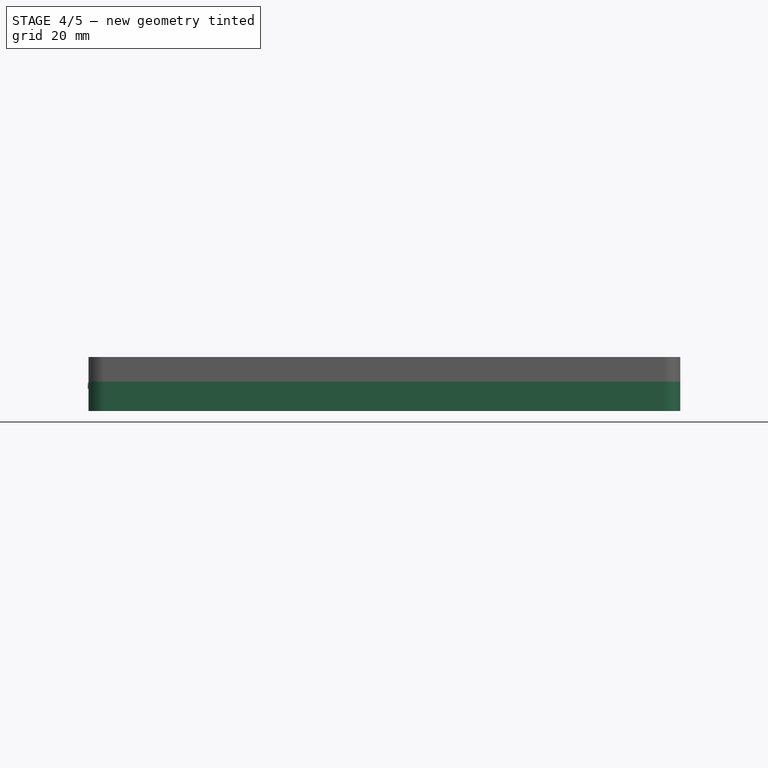
[diagram: stage 4 of 5 — front view after this stage's code; geometry added in this stage tinted green]
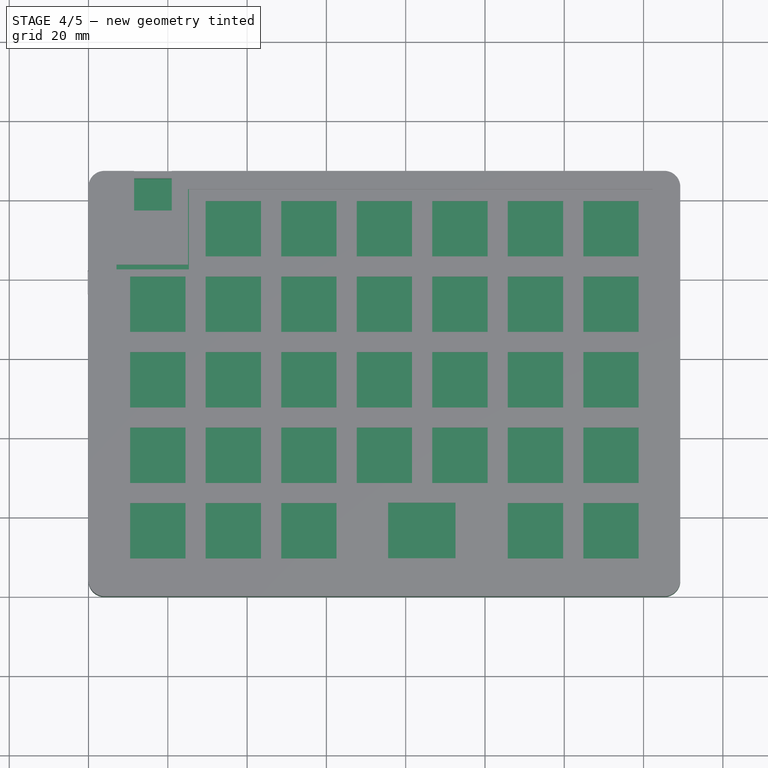
[diagram: stage 4 of 5 — top view after this stage's code; geometry added in this stage tinted green]
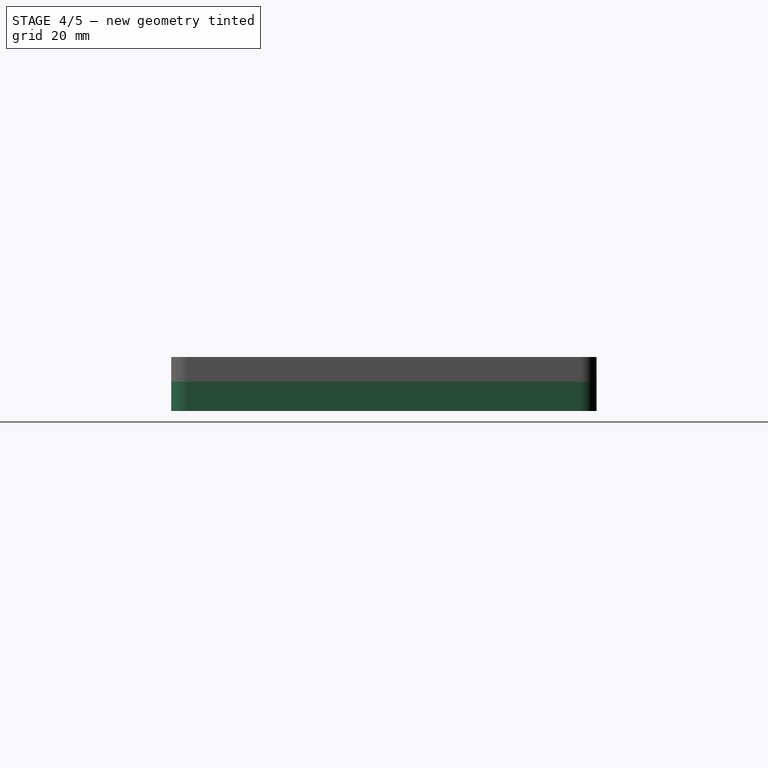
[diagram: stage 4 of 5 — right view after this stage's code; geometry added in this stage tinted green]
FEATURE [Sketcher::SketchObject] Sketch
  ArcFitTolerance = 1e-06
  AttachmentSupport = -> [XY_Plane]
  FullyConstrained = true
  MakeInternals = false
  MapMode = 5
  sketch-geometry (8):
    g0: LineSegment StartX=149.26 StartY=103.29 StartZ=0 EndX=149.26 EndY=4 EndZ=0
    g1: LineSegment StartX=0 StartY=103.29 StartZ=0 EndX=0 EndY=4 EndZ=0
    g2: ArcOfCircle CenterX=4 CenterY=4 CenterZ=0 NormalX=0 NormalY=0 NormalZ=1 AngleXU=0 Radius=4 StartAngle=3.14159 EndAngle=4.71239
    g3: ArcOfCircle CenterX=4 CenterY=103.29 CenterZ=0 NormalX=0 NormalY=0 NormalZ=1 AngleXU=0 Radius=4 StartAngle=1.5708 EndAngle=3.14159
    g4: ArcOfCircle CenterX=145.26 CenterY=103.29 CenterZ=0 NormalX=0 NormalY=0 NormalZ=1 AngleXU=0 Radius=4 StartAngle=1e-16 EndAngle=1.5708
    g5: ArcOfCircle CenterX=145.26 CenterY=4 CenterZ=0 NormalX=0 NormalY=0 NormalZ=1 AngleXU=0 Radius=4 StartAngle=4.71239 EndAngle=6.28319
    g6: LineSegment StartX=4 StartY=107.29 StartZ=0 EndX=145.26 EndY=107.29 EndZ=0
    g7: LineSegment StartX=4 StartY=2.403e-13 StartZ=0 EndX=145.26 EndY=1.283e-12 EndZ=0
  constraints (23):
    c: Vertical(g0)
    c: Vertical(g1)
    c: Radius(g3) = 4
    c: Radius(g2) = 4
    c: Radius(g5) = 4
    c: Radius(g4) = 4
    c: Tangent(g3,g1) = -1.5708
    c: Tangent(g2,g1) = -1.5708
    c: Tangent(g5,g0) = 1.5708
    c: Tangent(g4,g0) = 1.5708
    c: DistanceX(g3,g4) = 141.26
    c: DistanceY(g1,g1) = 99.29
    c: DistanceX(g-1,g1) = 0
    c: Coincident(g6,g3)
    c: Horizontal(g6)
    c: DistanceX(g2,g5) = 141.26
    c: Tangent(g6,g4) = 1.5708
    c: DistanceY(g5,g4) = 107.29
    c: PointOnObject(g2,g-1)
    c: Coincident(g7,g2)
    c: Coincident(g7,g5)
    c: Angle(g2) = 1.5708
    c: Angle(g5) = 1.5708
FEATURE [PartDesign::Pad] Pad
  Direction = (0,0,1)
  Length = 2
  Length2 = 10
  Profile = -> Sketch
  ReferenceAxis = -> Sketch [N_Axis]
  Refine = true
  Suppressed = false
  Type = 0
FEATURE [Sketcher::SketchObject] Sketch001
  ArcFitTolerance = 1e-06
  AttachmentSupport = -> [Pad]
  ExternalGeometry = -> [Pad]
  FullyConstrained = true
  MakeInternals = false
  MapMode = 5
  Placement = pos=(0,0,2) rot=(0,0,1;0rad)
  sketch-geometry (16):
    g0: ArcOfCircle CenterX=145.26 CenterY=103.29 CenterZ=0 NormalX=0 NormalY=0 NormalZ=1 AngleXU=0 Radius=4 StartAngle=3.664e-13 EndAngle=1.5708
    g1: LineSegment StartX=149.26 StartY=103.29 StartZ=0 EndX=149.26 EndY=4 EndZ=0
    g2: ArcOfCircle CenterX=145.26 CenterY=4 CenterZ=0 NormalX=0 NormalY=0 NormalZ=1 AngleXU=0 Radius=4 StartAngle=4.71239 EndAngle=6.28319
    g3: LineSegment StartX=145.26 StartY=1.1298e-12 StartZ=0 EndX=4 EndY=1.1298e-12 EndZ=0
    g4: ArcOfCircle CenterX=4 CenterY=4 CenterZ=0 NormalX=0 NormalY=0 NormalZ=1 AngleXU=0 Radius=4 StartAngle=3.14159 EndAngle=4.71239
    g5: LineSegment StartX=6.346e-13 StartY=4 StartZ=0 EndX=0 EndY=103.29 EndZ=0
    g6: ArcOfCircle CenterX=4 CenterY=103.29 CenterZ=0 NormalX=0 NormalY=0 NormalZ=1 AngleXU=0 Radius=4 StartAngle=1.5708 EndAngle=3.14159
    g7: LineSegment StartX=4 StartY=105.49 StartZ=0 EndX=145.26 EndY=105.49 EndZ=0
    g8: ArcOfCircle CenterX=4 CenterY=103.29 CenterZ=0 NormalX=0 NormalY=0 NormalZ=1 AngleXU=0 Radius=2.2 StartAngle=1.5708 EndAngle=3.14159
    g9: LineSegment StartX=1.8 StartY=103.29 StartZ=0 EndX=1.8 EndY=4 EndZ=0
    g10: ArcOfCircle CenterX=4 CenterY=4 CenterZ=0 NormalX=0 NormalY=0 NormalZ=1 AngleXU=0 Radius=2.2 StartAngle=3.14159 EndAngle=4.71239
    g11: LineSegment StartX=4 StartY=1.8 StartZ=0 EndX=145.26 EndY=1.8 EndZ=0
    g12: ArcOfCircle CenterX=145.26 CenterY=4 CenterZ=0 NormalX=0 NormalY=0 NormalZ=1 AngleXU=0 Radius=2.2 StartAngle=4.71239 EndAngle=6.28319
    g13: LineSegment StartX=147.46 StartY=4 StartZ=0 EndX=147.46 EndY=103.29 EndZ=0
    g14: ArcOfCircle CenterX=145.26 CenterY=103.29 CenterZ=0 NormalX=0 NormalY=0 NormalZ=1 AngleXU=0 Radius=2.2 StartAngle=1.01395e-06 EndAngle=1.5708
    g15: LineSegment StartX=4 StartY=107.29 StartZ=0 EndX=145.26 EndY=107.29 EndZ=0
  constraints (45):
    c: Coincident(g0,g-10)
    c: Coincident(g1,g0)
    c: Coincident(g1,g-9)
    c: Coincident(g2,g-8)
    c: Coincident(g2,g1)
    c: Coincident(g3,g2)
    c: Coincident(g3,g-7)
    c: Horizontal(g3)
    c: Coincident(g4,g-6)
    c: Coincident(g4,g3)
    c: Coincident(g5,g4)
    c: Tangent(g5,g-5) = 1.5708
    c: Coincident(g6,g-4)
    c: Coincident(g6,g5)
    c: Horizontal(g7)
    c: Angle(g8) = 1.5708
    c: Coincident(g8,g6)
    c: Coincident(g8,g7)
    c: DistanceY(g7,g6) = 1.8
    c: Radius(g8) = 2.2
    c: DistanceX(g5,g8) = 1.8
    c: Coincident(g9,g8)
    c: Vertical(g9)
    c: Equal(g9,g5)
    c: Angle(g10) = 1.5708
    c: Coincident(g10,g4)
    c: Coincident(g10,g9)
    c: Coincident(g11,g10)
    c: Horizontal(g11)
    c: Equal(g11,g3)
    c: Angle(g12) = 1.5708
    c: Coincident(g12,g2)
    c: Coincident(g12,g11)
    c: Coincident(g13,g12)
    c: Vertical(g13)
    c: Equal(g13,g1)
    c: Radius(g14) = 2.2
    c: Angle(g14) = 1.5708
    c: Coincident(g14,g7)
    c: Coincident(g14,g13)
    c: Coincident(g15,g6)
    c: Coincident(g15,g0)
    c: Horizontal(g15)
    c: Radius(g0) = 4
    c: Angle(g0) = 1.5708
FEATURE [PartDesign::Pad] Pad001
  BaseFeature = -> Pad
  Direction = (0,0,1)
  Length = 5.4
  Length2 = 10
  Profile = -> Sketch001
  ReferenceAxis = -> Sketch001 [N_Axis]
  Refine = true
  Suppressed = false
  Type = 0
FEATURE [Sketcher::SketchObject] Sketch002
  ArcFitTolerance = 1e-06
  AttachmentSupport = -> [Pad001]
  ExternalGeometry = -> [Pad001]
  FullyConstrained = true
  MakeInternals = false
  MapMode = 5
  Placement = pos=(0,0,2) rot=(0,0,1;0rad)
  sketch-geometry (13):
    g0: LineSegment StartX=145.71 StartY=103.74 StartZ=0 EndX=145.71 EndY=3.55 EndZ=0
    g1: LineSegment StartX=147.46 StartY=4 StartZ=0 EndX=147.46 EndY=103.29 EndZ=0
    g2: LineSegment StartX=145.71 StartY=3.55 StartZ=0 EndX=3.55 EndY=3.55 EndZ=0
    g3: ArcOfCircle CenterX=145.26 CenterY=4 CenterZ=0 NormalX=0 NormalY=0 NormalZ=1 AngleXU=0 Radius=2.2 StartAngle=4.71239 EndAngle=6.28319
    g4: ArcOfCircle CenterX=4 CenterY=4 CenterZ=0 NormalX=0 NormalY=0 NormalZ=1 AngleXU=0 Radius=2.2 StartAngle=3.14159 EndAngle=4.71239
    g5: LineSegment StartX=145.26 StartY=105.49 StartZ=0 EndX=27.8 EndY=105.49 EndZ=0
    g6: LineSegment StartX=27.8 StartY=105.49 StartZ=0 EndX=27.8 EndY=103.74 EndZ=0
    g7: LineSegment StartX=27.8 StartY=103.74 StartZ=0 EndX=145.71 EndY=103.74 EndZ=0
    g8: ArcOfCircle CenterX=145.26 CenterY=103.29 CenterZ=0 NormalX=0 NormalY=0 NormalZ=1 AngleXU=0 Radius=2.2 StartAngle=1.01395e-06 EndAngle=1.5708
    g9: LineSegment StartX=3.55 StartY=3.55 StartZ=0 EndX=3.55 EndY=63.55 EndZ=0
    g10: LineSegment StartX=3.55 StartY=63.55 StartZ=0 EndX=1.8 EndY=63.55 EndZ=0
    g11: LineSegment StartX=1.8 StartY=63.55 StartZ=0 EndX=1.8 EndY=4 EndZ=0
    g12: LineSegment StartX=4 StartY=1.8 StartZ=0 EndX=145.26 EndY=1.8 EndZ=0
  constraints (36):
    c: Vertical(g0)
    c: Horizontal(g2)
    c: DistanceY(g3,g2) = 1.75
    c: Coincident(g2,g0)
    c: DistanceX(g0,g1) = 1.75
    c: Coincident(g3,g-9)
    c: Coincident(g3,g-9)
    c: Coincident(g3,g1)
    c: Angle(g3) = 1.5708
    c: Coincident(g4,g-10)
    c: Coincident(g4,g-10)
    c: Coincident(g5,g6)
    c: Coincident(g6,g7)
    c: Horizontal(g5)
    c: Horizontal(g7)
    c: Vertical(g6)
    c: Coincident(g5,g-8)
    c: DistanceY(g7,g5) = 1.75
    c: Coincident(g8,g-8)
    c: Coincident(g8,g5)
    c: Coincident(g8,g1)
    c: Coincident(g0,g7)
    c: Vertical(g1)
    c: Coincident(g9,g10)
    c: Coincident(g10,g11)
    c: Vertical(g9)
    c: Vertical(g11)
    c: Horizontal(g10)
    c: Coincident(g11,g4)
    c: Coincident(g2,g9)
    c: DistanceX(g4,g2) = 1.75
    c: DistanceX(g-7,g6) = 26
    c: Angle(g8) = 1.5708
    c: Angle(g4) = 1.5708
    c: Coincident(g12,g4)
    c: Coincident(g12,g3)
FEATURE [PartDesign::Pad] Pad002
  BaseFeature = -> Pad001
  Direction = (0,0,1)
  Length = 7.9
  Length2 = 10
  Profile = -> Sketch002
  ReferenceAxis = -> Sketch002 [N_Axis]
  Refine = true
  Suppressed = false
  Type = 0
FEATURE [Sketcher::SketchObject] Sketch010
  ArcFitTolerance = 1e-06
  AttachmentSupport = -> [Pad004]
  ExternalGeometry = -> [Pad004]
  FullyConstrained = true
  MakeInternals = false
  MapMode = 5
  Placement = pos=(0,0,9.9) rot=(1,0,0;3.14159rad)
  sketch-geometry (128):
    g0: LineSegment StartX=124.805 StartY=-23.5 StartZ=0 EndX=138.755 EndY=-23.5 EndZ=0
    g1: LineSegment StartX=62.555 StartY=-9.55 StartZ=0 EndX=48.605 EndY=-9.55 EndZ=0
    g2: LineSegment StartX=48.605 StartY=-23.5 StartZ=0 EndX=62.555 EndY=-23.5 EndZ=0
    g3: LineSegment StartX=29.555 StartY=-9.55 StartZ=0 EndX=29.555 EndY=-23.5 EndZ=0
    g4: LineSegment StartX=24.455 StartY=-9.55 StartZ=0 EndX=10.505 EndY=-9.55 EndZ=0
    g5: LineSegment StartX=10.505 StartY=-23.5 StartZ=0 EndX=24.455 EndY=-23.5 EndZ=0
    g6: LineSegment StartX=138.755 StartY=-42.55 StartZ=0 EndX=138.755 EndY=-28.6 EndZ=0
    g7: LineSegment StartX=124.805 StartY=-28.6 StartZ=0 EndX=124.805 EndY=-42.55 EndZ=0
    g8: LineSegment StartX=119.705 StartY=-42.55 StartZ=0 EndX=119.705 EndY=-28.6 EndZ=0
    g9: LineSegment StartX=105.755 StartY=-28.6 StartZ=0 EndX=105.755 EndY=-42.55 EndZ=0
    g10: LineSegment StartX=100.655 StartY=-42.55 StartZ=0 EndX=100.655 EndY=-28.6 EndZ=0
    g11: LineSegment StartX=86.705 StartY=-28.6 StartZ=0 EndX=86.705 EndY=-42.55 EndZ=0
    g12: LineSegment StartX=81.605 StartY=-42.55 StartZ=0 EndX=81.605 EndY=-28.6 EndZ=0
    g13: LineSegment StartX=67.655 StartY=-28.6 StartZ=0 EndX=67.655 EndY=-42.55 EndZ=0
    g14: LineSegment StartX=62.555 StartY=-42.55 StartZ=0 EndX=62.555 EndY=-28.6 EndZ=0
    g15: LineSegment StartX=48.605 StartY=-28.6 StartZ=0 EndX=48.605 EndY=-42.55 EndZ=0
    g16: LineSegment StartX=29.555 StartY=-28.6 StartZ=0 EndX=29.555 EndY=-42.55 EndZ=0
    g17: LineSegment StartX=10.505 StartY=-28.6 StartZ=0 EndX=10.505 EndY=-42.55 EndZ=0
    g18: LineSegment StartX=138.755 StartY=-61.6 StartZ=0 EndX=138.755 EndY=-47.65 EndZ=0
    g19: LineSegment StartX=124.805 StartY=-47.65 StartZ=0 EndX=124.805 EndY=-61.6 EndZ=0
    g20: LineSegment StartX=119.705 StartY=-61.6 StartZ=0 EndX=119.705 EndY=-47.65 EndZ=0
    g21: LineSegment StartX=105.755 StartY=-47.65 StartZ=0 EndX=105.755 EndY=-61.6 EndZ=0
    g22: LineSegment StartX=100.655 StartY=-61.6 StartZ=0 EndX=100.655 EndY=-47.65 EndZ=0
    g23: LineSegment StartX=86.705 StartY=-47.65 StartZ=0 EndX=86.705 EndY=-61.6 EndZ=0
    g24: LineSegment StartX=81.605 StartY=-61.6 StartZ=0 EndX=81.605 EndY=-47.65 EndZ=0
    g25: LineSegment StartX=67.655 StartY=-47.65 StartZ=0 EndX=67.655 EndY=-61.6 EndZ=0
    g26: LineSegment StartX=62.555 StartY=-47.65 StartZ=0 EndX=48.605 EndY=-47.65 EndZ=0
    g27: LineSegment StartX=29.555 StartY=-47.65 StartZ=0 EndX=29.555 EndY=-61.6 EndZ=0
    g28: LineSegment StartX=10.505 StartY=-61.6 StartZ=0 EndX=24.455 EndY=-61.6 EndZ=0
    g29: LineSegment StartX=138.755 StartY=-80.65 StartZ=0 EndX=138.755 EndY=-66.7 EndZ=0
    g30: LineSegment StartX=124.805 StartY=-66.7 StartZ=0 EndX=124.805 EndY=-80.65 EndZ=0
    g31: LineSegment StartX=119.705 StartY=-80.65 StartZ=0 EndX=119.705 EndY=-66.7 EndZ=0
    g32: LineSegment StartX=100.655 StartY=-80.65 StartZ=0 EndX=100.655 EndY=-66.7 EndZ=0
    g33: LineSegment StartX=86.705 StartY=-66.7 StartZ=0 EndX=86.705 EndY=-80.65 EndZ=0
    g34: LineSegment StartX=67.655 StartY=-66.7 StartZ=0 EndX=67.655 EndY=-80.65 EndZ=0
    g35: LineSegment StartX=62.555 StartY=-80.65 StartZ=0 EndX=62.555 EndY=-66.7 EndZ=0
    g36: LineSegment StartX=43.505 StartY=-66.7 StartZ=0 EndX=29.555 EndY=-66.7 EndZ=0
    g37: LineSegment StartX=10.505 StartY=-66.7 StartZ=0 EndX=10.505 EndY=-80.65 EndZ=0
    g38: LineSegment StartX=138.755 StartY=-99.7 StartZ=0 EndX=138.755 EndY=-85.75 EndZ=0
    g39: LineSegment StartX=119.705 StartY=-99.7 StartZ=0 EndX=119.705 EndY=-85.75 EndZ=0
    g40: LineSegment StartX=100.655 StartY=-99.7 StartZ=0 EndX=100.655 EndY=-85.75 EndZ=0
    g41: LineSegment StartX=81.605 StartY=-85.75 StartZ=0 EndX=67.655 EndY=-85.75 EndZ=0
    g42: LineSegment StartX=62.555 StartY=-99.7 StartZ=0 EndX=62.555 EndY=-85.75 EndZ=0
    g43: LineSegment StartX=48.605 StartY=-85.75 StartZ=0 EndX=48.605 EndY=-99.7 EndZ=0
    g44: LineSegment StartX=43.505 StartY=-85.75 StartZ=0 EndX=29.555 EndY=-85.75 EndZ=0
    g45: LineSegment StartX=29.555 StartY=-99.7 StartZ=0 EndX=43.505 EndY=-99.7 EndZ=0
    g46: LineSegment StartX=124.805 StartY=-9.55 StartZ=0 EndX=138.755 EndY=-9.55 EndZ=0
    g47: LineSegment StartX=138.755 StartY=-9.55 StartZ=0 EndX=138.755 EndY=-23.5 EndZ=0
    g48: LineSegment StartX=124.805 StartY=-9.55 StartZ=0 EndX=124.805 EndY=-23.5 EndZ=0
    g49: LineSegment StartX=86.705 StartY=-28.6 StartZ=0 EndX=100.655 EndY=-28.6 EndZ=0
    g50: LineSegment StartX=67.655 StartY=-28.6 StartZ=0 EndX=81.605 EndY=-28.6 EndZ=0
    g51: LineSegment StartX=48.605 StartY=-28.6 StartZ=0 EndX=62.555 EndY=-28.6 EndZ=0
    g52: LineSegment StartX=29.555 StartY=-28.6 StartZ=0 EndX=43.505 EndY=-28.6 EndZ=0
    g53: LineSegment StartX=86.705 StartY=-42.55 StartZ=0 EndX=100.655 EndY=-42.55 EndZ=0
    g54: LineSegment StartX=105.755 StartY=-28.6 StartZ=0 EndX=119.705 EndY=-28.6 EndZ=0
    g55: LineSegment StartX=86.705 StartY=-47.65 StartZ=0 EndX=100.655 EndY=-47.65 EndZ=0
    g56: LineSegment StartX=105.755 StartY=-47.65 StartZ=0 EndX=119.705 EndY=-47.65 EndZ=0
    g57: LineSegment StartX=105.755 StartY=-80.65 StartZ=0 EndX=119.705 EndY=-80.65 EndZ=0
    g58: LineSegment StartX=105.755 StartY=-66.7 StartZ=0 EndX=119.705 EndY=-66.7 EndZ=0
    g59: LineSegment StartX=86.705 StartY=-66.7 StartZ=0 EndX=100.655 EndY=-66.7 EndZ=0
    g60: LineSegment StartX=105.755 StartY=-66.7 StartZ=0 EndX=105.755 EndY=-80.65 EndZ=0
    g61: LineSegment StartX=86.705 StartY=-80.65 StartZ=0 EndX=100.655 EndY=-80.65 EndZ=0
    g62: LineSegment StartX=105.755 StartY=-61.6 StartZ=0 EndX=119.705 EndY=-61.6 EndZ=0
    g63: LineSegment StartX=124.805 StartY=-80.65 StartZ=0 EndX=138.755 EndY=-80.65 EndZ=0
    g64: LineSegment StartX=124.805 StartY=-99.7 StartZ=0 EndX=138.755 EndY=-99.7 EndZ=0
    g65: LineSegment StartX=105.755 StartY=-99.7 StartZ=0 EndX=119.705 EndY=-99.7 EndZ=0
    g66: LineSegment StartX=105.755 StartY=-85.75 StartZ=0 EndX=105.755 EndY=-99.7 EndZ=0
    g67: LineSegment StartX=105.755 StartY=-42.55 StartZ=0 EndX=119.705 EndY=-42.55 EndZ=0
    g68: LineSegment StartX=124.805 StartY=-61.6 StartZ=0 EndX=138.755 EndY=-61.6 EndZ=0
    g69: LineSegment StartX=124.805 StartY=-42.55 StartZ=0 EndX=138.755 EndY=-42.55 EndZ=0
    g70: LineSegment StartX=124.805 StartY=-47.65 StartZ=0 EndX=138.755 EndY=-47.65 EndZ=0
    g71: LineSegment StartX=124.805 StartY=-85.75 StartZ=0 EndX=138.755 EndY=-85.75 EndZ=0
    g72: LineSegment StartX=124.805 StartY=-66.7 StartZ=0 EndX=138.755 EndY=-66.7 EndZ=0
    g73: LineSegment StartX=86.705 StartY=-61.6 StartZ=0 EndX=100.655 EndY=-61.6 EndZ=0
    g74: LineSegment StartX=67.655 StartY=-42.55 StartZ=0 EndX=81.605 EndY=-42.55 EndZ=0
    g75: LineSegment StartX=67.655 StartY=-61.6 StartZ=0 EndX=81.605 EndY=-61.6 EndZ=0
    g76: LineSegment StartX=67.655 StartY=-47.65 StartZ=0 EndX=81.605 EndY=-47.65 EndZ=0
    g77: LineSegment StartX=67.655 StartY=-80.65 StartZ=0 EndX=81.605 EndY=-80.65 EndZ=0
    g78: LineSegment StartX=86.705 StartY=-99.7 StartZ=0 EndX=100.655 EndY=-99.7 EndZ=0
    g79: LineSegment StartX=67.655 StartY=-99.7 StartZ=0 EndX=81.605 EndY=-99.7 EndZ=0
    g80: LineSegment StartX=48.605 StartY=-99.7 StartZ=0 EndX=62.555 EndY=-99.7 EndZ=0
    g81: LineSegment StartX=48.605 StartY=-85.75 StartZ=0 EndX=62.555 EndY=-85.75 EndZ=0
    g82: LineSegment StartX=48.605 StartY=-80.65 StartZ=0 EndX=62.555 EndY=-80.65 EndZ=0
    g83: LineSegment StartX=48.605 StartY=-66.7 StartZ=0 EndX=48.605 EndY=-80.65 EndZ=0
    g84: LineSegment StartX=124.805 StartY=-85.75 StartZ=0 EndX=124.805 EndY=-99.7 EndZ=0
    g85: LineSegment StartX=105.755 StartY=-85.75 StartZ=0 EndX=119.705 EndY=-85.75 EndZ=0
    g86: LineSegment StartX=67.655 StartY=-85.75 StartZ=0 EndX=67.655 EndY=-99.7 EndZ=0
    g87: LineSegment StartX=43.505 StartY=-85.75 StartZ=0 EndX=43.505 EndY=-99.7 EndZ=0
    g88: LineSegment StartX=29.555 StartY=-80.65 StartZ=0 EndX=43.505 EndY=-80.65 EndZ=0
    g89: LineSegment StartX=29.555 StartY=-85.75 StartZ=0 EndX=29.555 EndY=-99.7 EndZ=0
    g90: LineSegment StartX=29.555 StartY=-66.7 StartZ=0 EndX=29.555 EndY=-80.65 EndZ=0
    g91: LineSegment StartX=48.605 StartY=-66.7 StartZ=0 EndX=62.555 EndY=-66.7 EndZ=0
    g92: LineSegment StartX=29.555 StartY=-61.6 StartZ=0 EndX=43.505 EndY=-61.6 EndZ=0
    g93: LineSegment StartX=10.505 StartY=-80.65 StartZ=0 EndX=24.455 EndY=-80.65 EndZ=0
    g94: LineSegment StartX=86.705 StartY=-85.75 StartZ=0 EndX=86.705 EndY=-99.7 EndZ=0
    g95: LineSegment StartX=86.705 StartY=-85.75 StartZ=0 EndX=100.655 EndY=-85.75 EndZ=0
    g96: LineSegment StartX=62.555 StartY=-9.55 StartZ=0 EndX=62.555 EndY=-23.5 EndZ=0
    g97: LineSegment StartX=48.605 StartY=-9.55 StartZ=0 EndX=48.605 EndY=-23.5 EndZ=0
    g98: LineSegment StartX=48.605 StartY=-42.55 StartZ=0 EndX=62.555 EndY=-42.55 EndZ=0
    g99: LineSegment StartX=124.805 StartY=-28.6 StartZ=0 EndX=138.755 EndY=-28.6 EndZ=0
    g100: LineSegment StartX=48.605 StartY=-47.65 StartZ=0 EndX=48.605 EndY=-61.6 EndZ=0
    g101: LineSegment StartX=48.605 StartY=-61.6 StartZ=0 EndX=62.555 EndY=-61.6 EndZ=0
    g102: LineSegment StartX=62.555 StartY=-47.65 StartZ=0 EndX=62.555 EndY=-61.6 EndZ=0
    g103: LineSegment StartX=81.605 StartY=-80.65 StartZ=0 EndX=81.605 EndY=-66.7 EndZ=0
    g104: LineSegment StartX=67.655 StartY=-66.7 StartZ=0 EndX=81.605 EndY=-66.7 EndZ=0
    g105: LineSegment StartX=81.605 StartY=-85.75 StartZ=0 EndX=81.605 EndY=-99.7 EndZ=0
    g106: LineSegment StartX=43.505 StartY=-66.7 StartZ=0 EndX=43.505 EndY=-80.65 EndZ=0
    g107: LineSegment StartX=43.505 StartY=-47.65 StartZ=0 EndX=43.505 EndY=-61.6 EndZ=0
    g108: LineSegment StartX=29.555 StartY=-47.65 StartZ=0 EndX=43.505 EndY=-47.65 EndZ=0
    g109: LineSegment StartX=43.505 StartY=-28.6 StartZ=0 EndX=43.505 EndY=-42.55 EndZ=0
    g110: LineSegment StartX=29.555 StartY=-42.55 StartZ=0 EndX=43.505 EndY=-42.55 EndZ=0
    g111: LineSegment StartX=43.505 StartY=-9.55 StartZ=0 EndX=43.505 EndY=-23.5 EndZ=0
    g112: LineSegment StartX=29.555 StartY=-9.55 StartZ=0 EndX=43.505 EndY=-9.55 EndZ=0
    g113: LineSegment StartX=29.555 StartY=-23.5 StartZ=0 EndX=43.505 EndY=-23.5 EndZ=0
    g114: LineSegment StartX=24.455 StartY=-9.55 StartZ=0 EndX=24.455 EndY=-23.5 EndZ=0
    g115: LineSegment StartX=10.505 StartY=-9.55 StartZ=0 EndX=10.505 EndY=-23.5 EndZ=0
    g116: LineSegment StartX=24.455 StartY=-28.6 StartZ=0 EndX=24.455 EndY=-42.55 EndZ=0
    g117: LineSegment StartX=10.505 StartY=-28.6 StartZ=0 EndX=24.455 EndY=-28.6 EndZ=0
    g118: LineSegment StartX=10.505 StartY=-42.55 StartZ=0 EndX=24.455 EndY=-42.55 EndZ=0
    g119: LineSegment StartX=24.455 StartY=-47.65 StartZ=0 EndX=24.455 EndY=-61.6 EndZ=0
    g120: LineSegment StartX=10.505 StartY=-47.65 StartZ=0 EndX=24.455 EndY=-47.65 EndZ=0
    g121: LineSegment StartX=10.505 StartY=-47.65 StartZ=0 EndX=10.505 EndY=-61.6 EndZ=0
    g122: LineSegment StartX=24.455 StartY=-80.65 StartZ=0 EndX=24.455 EndY=-66.7 EndZ=0
    g123: LineSegment StartX=10.505 StartY=-66.7 StartZ=0 EndX=24.455 EndY=-66.7 EndZ=0
    g124: LineSegment StartX=105.755 StartY=-9.55 StartZ=0 EndX=105.755 EndY=-23.5 EndZ=0
    g125: LineSegment StartX=105.755 StartY=-23.5 StartZ=0 EndX=119.705 EndY=-23.5 EndZ=0
    g126: LineSegment StartX=119.705 StartY=-23.5 StartZ=0 EndX=119.705 EndY=-9.55 EndZ=0
    g127: LineSegment StartX=119.705 StartY=-9.55 StartZ=0 EndX=105.755 EndY=-9.55 EndZ=0
  constraints (384):
    c: Horizontal(g0)
    c: Horizontal(g1)
    c: Horizontal(g2)
    c: Vertical(g3)
    c: Horizontal(g4)
    c: Horizontal(g5)
    c: Vertical(g6)
    c: Vertical(g7)
    c: Vertical(g8)
    c: Vertical(g9)
    c: Vertical(g10)
    c: Vertical(g11)
    c: Vertical(g12)
    c: Vertical(g13)
    c: Vertical(g14)
    c: Vertical(g15)
    c: Vertical(g16)
    c: Vertical(g17)
    c: Vertical(g18)
    c: Vertical(g19)
    c: Vertical(g20)
    c: Vertical(g21)
    c: Vertical(g22)
    c: Vertical(g23)
    c: Vertical(g24)
    c: Vertical(g25)
    c: Horizontal(g26)
    c: Vertical(g27)
    c: Horizontal(g28)
    c: Vertical(g29)
    c: Vertical(g30)
    c: Vertical(g31)
    c: Vertical(g32)
    c: Vertical(g33)
    c: Vertical(g34)
    c: Vertical(g35)
    c: Horizontal(g36)
    c: Vertical(g37)
    c: Vertical(g38)
    c: Vertical(g39)
    c: Vertical(g40)
    c: Horizontal(g41)
    c: Vertical(g42)
    c: Vertical(g43)
    c: Horizontal(g44)
    c: Horizontal(g45)
    c: DistanceY(g0,g46) = 13.95
    c: DistanceX(g46,g46) = 13.95
    c: DistanceY(g6,g6) = 13.95
    c: DistanceX(g7,g6) = 13.95
    c: DistanceY(g8,g8) = 13.95
    c: DistanceX(g9,g8) = 13.95
    c: DistanceY(g10,g10) = 13.95
    c: DistanceX(g11,g10) = 13.95
    c: DistanceY(g12,g12) = 13.95
    c: DistanceX(g13,g12) = 13.95
    c: DistanceY(g14,g14) = 13.95
    c: DistanceX(g15,g14) = 13.95
    c: DistanceY(g18,g18) = 13.95
    c: DistanceX(g19,g18) = 13.95
    c: DistanceY(g20,g20) = 13.95
    c: DistanceX(g21,g20) = 13.95
    c: DistanceY(g22,g22) = 13.95
    c: DistanceX(g23,g22) = 13.95
    c: DistanceY(g24,g24) = 13.95
    c: DistanceX(g25,g24) = 13.95
    c: DistanceX(g27,g92) = 13.95
    c: DistanceX(g37,g93) = 13.95
    c: DistanceY(g88,g36) = 13.95
    c: DistanceX(g88,g88) = 13.95
    c: DistanceX(g83,g35) = 13.95
    c: DistanceY(g82,g83) = 13.95
    c: DistanceY(g35,g35) = 13.95
    c: DistanceX(g82,g35) = 13.95
    c: DistanceX(g34,g77) = 13.95
    c: DistanceY(g32,g32) = 13.95
    c: DistanceX(g33,g32) = 13.95
    c: DistanceY(g31,g31) = 13.95
    c: DistanceX(g57,g31) = 13.95
    c: DistanceY(g29,g29) = 13.95
    c: DistanceX(g30,g29) = 13.95
    c: DistanceY(g38,g38) = 13.95
    c: DistanceX(g64,g38) = 13.95
    c: DistanceY(g39,g39) = 13.95
    c: DistanceX(g66,g39) = 13.95
    c: DistanceY(g65,g66) = 13.95
    c: DistanceX(g65,g39) = 13.95
    c: DistanceY(g40,g40) = 13.95
    c: DistanceX(g78,g40) = 13.95
    c: DistanceY(g79,g41) = 13.95
    c: DistanceX(g79,g79) = 13.95
    c: DistanceY(g42,g42) = 13.95
    c: DistanceX(g43,g42) = 13.95
    c: DistanceY(g6,g0) = 5.1
    c: DistanceY(g18,g6) = 5.1
    c: DistanceY(g29,g18) = 5.1
    c: DistanceY(g38,g29) = 5.1
    c: DistanceY(g20,g8) = 5.1
    c: DistanceY(g31,g20) = 5.1
    c: DistanceX(g20,g19) = 5.1
    c: DistanceY(g39,g31) = 5.1
    c: DistanceY(g22,g10) = 5.1
    c: DistanceY(g32,g22) = 5.1
    c: DistanceY(g40,g32) = 5.1
    c: DistanceX(g40,g66) = 5.1
    c: DistanceY(g24,g12) = 5.1
    c: DistanceX(g77,g33) = 5.1
    c: DistanceY(g35,g101) = 5.1
    c: DistanceY(g42,g35) = 5.1
    c: DistanceX(g42,g41) = 5.1
    c: DistanceX(g93,g44) = 5.1
    c: DistanceY(g66,g57) = 5.1
    c: DistanceY(g41,g34) = 5.1
    c: DistanceY(g26,g15) = 5.1
    c: DistanceY(g44,g88) = 5.1
    c: DistanceY(g36,g27) = 5.1
    c: DistanceX(g0,g6) = 0
    c: DistanceX(g6,g18) = 0
    c: DistanceX(g18,g29) = 0
    c: DistanceX(g29,g38) = 0
    c: Horizontal(g46)
    c: DistanceX(g46,g0) = 0
    c: Coincident(g47,g46)
    c: Coincident(g47,g0)
    c: Coincident(g48,g46)
    c: Coincident(g48,g0)
    c: Vertical(g48)
    c: Coincident(g49,g11)
    c: Coincident(g49,g10)
    c: Horizontal(g49)
    c: Coincident(g50,g13)
    c: Coincident(g50,g12)
    c: Horizontal(g50)
    c: Coincident(g51,g15)
    c: Coincident(g51,g14)
    c: Horizontal(g51)
    c: Coincident(g52,g16)
    c: Horizontal(g52)
    c: DistanceX(g10,g9) = 5.1
    c: Coincident(g53,g11)
    c: Coincident(g53,g10)
    c: Horizontal(g53)
    c: Coincident(g54,g9)
    c: Coincident(g54,g8)
    c: Horizontal(g54)
    c: Coincident(g55,g23)
    c: Coincident(g55,g22)
    c: Horizontal(g55)
    c: Coincident(g56,g21)
    c: Coincident(g56,g20)
    c: Horizontal(g56)
    c: Coincident(g57,g31)
    c: Horizontal(g57)
    c: Coincident(g58,g31)
    c: Horizontal(g58)
    c: DistanceY(g58,g21) = 5.1
    c: DistanceX(g32,g57) = 5.1
    c: Coincident(g59,g33)
    c: Coincident(g59,g32)
    c: Horizontal(g59)
    c: Coincident(g60,g58)
    c: Coincident(g60,g57)
    c: Vertical(g60)
    c: Coincident(g61,g33)
    c: Coincident(g61,g32)
    c: Horizontal(g61)
    c: Coincident(g62,g21)
    c: Coincident(g62,g20)
    c: Coincident(g63,g30)
    c: Coincident(g63,g29)
    c: Coincident(g64,g38)
    c: Coincident(g65,g39)
    c: Coincident(g66,g65)
    c: Coincident(g67,g9)
    c: Coincident(g67,g8)
    c: Horizontal(g67)
    c: Coincident(g68,g19)
    c: Coincident(g68,g18)
    c: Coincident(g69,g7)
    c: Coincident(g69,g6)
    c: Coincident(g70,g19)
    c: Coincident(g70,g18)
    c: Horizontal(g70)
    c: Coincident(g71,g38)
    c: Horizontal(g71)
    c: Coincident(g72,g30)
    c: Coincident(g72,g29)
    c: Horizontal(g72)
    c: DistanceX(g31,g30) = 5.1
    c: DistanceX(g22,g21) = 5.1
    c: Coincident(g73,g23)
    c: Coincident(g73,g22)
    c: Horizontal(g73)
    c: DistanceY(g11,g0) = 5.1
    c: DistanceY(g12,g0) = 5.1
    c: DistanceY(g14,g0) = 5.1
    c: DistanceY(g52,g0) = 5.1
    c: DistanceX(g12,g11) = 5.1
    c: DistanceX(g24,g23) = 5.1
    c: Coincident(g74,g13)
    c: Coincident(g74,g12)
    c: Horizontal(g74)
    c: Coincident(g75,g25)
    c: Coincident(g75,g24)
    c: Coincident(g76,g25)
    c: Coincident(g76,g24)
    c: Horizontal(g76)
    c: Coincident(g77,g34)
    c: Horizontal(g77)
    c: Coincident(g78,g40)
    c: Horizontal(g78)
    c: DistanceY(g40,g57) = 5.1
    c: Coincident(g80,g43)
    c: Coincident(g80,g42)
    c: Horizontal(g80)
    c: Coincident(g81,g43)
    c: Coincident(g81,g42)
    c: Horizontal(g81)
    c: Coincident(g82,g35)
    c: Horizontal(g82)
    c: Coincident(g83,g82)
    c: Coincident(g84,g71)
    c: Coincident(g84,g64)
    c: Vertical(g84)
    c: Horizontal(g64)
    c: Horizontal(g63)
    c: Coincident(g85,g66)
    c: Coincident(g85,g39)
    c: DistanceX(g39,g71) = 5.1
    c: Coincident(g86,g41)
    c: Coincident(g86,g79)
    c: Coincident(g87,g44)
    c: Coincident(g87,g45)
    c: Vertical(g87)
    c: DistanceY(g44,g88) = 5.1
    c: Coincident(g89,g44)
    c: Coincident(g89,g45)
    c: Vertical(g89)
    c: Coincident(g90,g36)
    c: Coincident(g90,g88)
    c: Coincident(g91,g83)
    c: Coincident(g91,g35)
    c: Coincident(g92,g27)
    c: DistanceY(g45,g44) = 13.95
    c: DistanceX(g45,g45) = 13.95
    c: Coincident(g93,g37)
    c: Horizontal(g93)
    c: DistanceX(g14,g13) = 5.1
    c: Horizontal(g68)
    c: Coincident(g94,g78)
    c: Vertical(g94)
    c: Coincident(g95,g94)
    c: Coincident(g95,g40)
    c: Horizontal(g95)
    c: Coincident(g96,g1)
    c: Coincident(g96,g2)
    c: Vertical(g96)
    c: Coincident(g97,g1)
    c: Coincident(g97,g2)
    c: Vertical(g97)
    c: Coincident(g98,g15)
    c: Coincident(g98,g14)
    c: Coincident(g99,g7)
    c: Coincident(g99,g6)
    c: Horizontal(g99)
    c: Coincident(g100,g26)
    c: Vertical(g100)
    c: Coincident(g101,g100)
    c: Horizontal(g101)
    c: Coincident(g102,g26)
    c: Coincident(g102,g101)
    c: Vertical(g102)
    c: Coincident(g103,g77)
    c: Vertical(g103)
    c: Coincident(g104,g34)
    c: Coincident(g104,g103)
    c: Horizontal(g104)
    c: Coincident(g105,g41)
    c: Coincident(g105,g79)
    c: Vertical(g105)
    c: Coincident(g106,g36)
    c: Coincident(g106,g88)
    c: Vertical(g106)
    c: Coincident(g107,g92)
    c: Vertical(g107)
    c: Coincident(g108,g27)
    c: Coincident(g108,g107)
    c: Horizontal(g108)
    c: Coincident(g109,g52)
    c: Vertical(g109)
    c: Coincident(g110,g16)
    c: Coincident(g110,g109)
    c: Horizontal(g110)
    c: Horizontal(g98)
    c: Horizontal(g75)
    c: Horizontal(g69)
    c: Vertical(g111)
    c: Coincident(g112,g3)
    c: Coincident(g112,g111)
    c: Horizontal(g112)
    c: Coincident(g113,g3)
    c: Coincident(g113,g111)
    c: Horizontal(g113)
    c: Coincident(g114,g4)
    c: Coincident(g114,g5)
    c: Vertical(g114)
    c: Coincident(g115,g4)
    c: Coincident(g115,g5)
    c: Vertical(g115)
    c: DistanceY(g5,g4) = 13.95
    c: DistanceX(g4,g4) = 13.95
    c: Vertical(g116)
    c: Coincident(g117,g17)
    c: Coincident(g117,g116)
    c: Horizontal(g117)
    c: Coincident(g118,g17)
    c: Coincident(g118,g116)
    c: Horizontal(g118)
    c: Coincident(g119,g28)
    c: Vertical(g119)
    c: Coincident(g120,g119)
    c: Horizontal(g120)
    c: Coincident(g121,g120)
    c: Coincident(g121,g28)
    c: Vertical(g121)
    c: Coincident(g122,g93)
    c: Vertical(g122)
    c: Coincident(g123,g37)
    c: Coincident(g123,g122)
    c: Horizontal(g123)
    c: DistanceX(g119,g27) = 5.1
    c: DistanceX(g107,g26) = 5.1
    c: DistanceY(g16,g16) = 13.95
    c: DistanceY(g17,g17) = 13.95
    c: DistanceX(g17,g116) = 13.95
    c: DistanceY(g119,g116) = 5.1
    c: DistanceY(g122,g28) = 5.1
    c: DistanceY(g93,g122) = 13.95
    c: DistanceY(g28,g119) = 13.95
    c: DistanceX(g28,g28) = 13.95
    c: DistanceY(g2,g1) = 13.95
    c: DistanceX(g1,g1) = 13.95
    c: DistanceX(g111,g1) = 5.1
    c: DistanceY(g111,g111) = 13.95
    c: DistanceX(g3,g111) = 13.95
    c: DistanceY(g52,g111) = 5.1
    c: DistanceY(g15,g2) = 5.1
    c: DistanceY(g101,g26) = 13.95
    c: DistanceX(g26,g26) = 13.95
    c: DistanceY(g92,g107) = 13.95
    c: DistanceY(g77,g103) = 13.95
    c: DistanceY(g79,g41) = 13.95
    c: DistanceX(g44,g43) = 5.1
    c: DistanceX(g16,g52) = 13.95
    c: DistanceX(g4,g3) = 5.1
    c: DistanceX(g8,g7) = 5.1
    c: DistanceY(g116,g5) = 5.1
    c: DistanceX(g41,g94) = 5.1
    c: DistanceY(g116,g3) = 5.1
    c: DistanceX(g116,g3) = 5.1
    c: DistanceY(g107,g15) = 5.1
    c: DistanceX(g107,g15) = 5.1
    c: DistanceX(g36,g100) = 5.1
    c: DistanceY(g44,g82) = 5.1
    c: DistanceX(g122,g27) = 5.1
    c: Vertical(g90)
    c: DistanceX(g52,g15) = 5.1
    c: DistanceX(g116,g16) = 5.1
    c: DistanceY(g34,g25) = 5.1
    c: DistanceX(g35,g34) = 5.1
    c: DistanceY(g4,g-3) = 7.25
    c: DistanceX(g-4,g37) = 8.205
    c: Coincident(g124,g125)
    c: Coincident(g125,g126)
    c: Coincident(g126,g127)
    c: Coincident(g127,g124)
    c: Vertical(g124)
    c: Vertical(g126)
    c: Horizontal(g125)
    c: Horizontal(g127)
    c: Distance(g124,g126) = 13.95
    c: Distance(g125,g127) = 13.95
    c: DistanceX(g126,g46) = 5.1
    c: DistanceY(g8,g125) = 5.1
FEATURE [PartDesign::Pocket] Pocket004
  BaseFeature = -> Pad004
  Direction = (0,0,1)
  Length = 1.6
  Length2 = 5
  Profile = -> Sketch010
  ReferenceAxis = -> Sketch010 [N_Axis]
  Refine = true
  Suppressed = false
  Type = 0
FEATURE [Sketcher::SketchObject] Sketch013
  ArcFitTolerance = 1e-06
  AttachmentSupport = -> [Pocket004]
  ExternalGeometry = -> [Pocket004]
  FullyConstrained = true
  MakeInternals = false
  MapMode = 5
  Placement = pos=(0,0,11.5) rot=(0,0,1;0rad)
  sketch-geometry (4):
    g0: LineSegment StartX=75.555 StartY=23.6 StartZ=0 EndX=75.555 EndY=9.6 EndZ=0
    g1: LineSegment StartX=75.555 StartY=9.6 StartZ=0 EndX=92.555 EndY=9.6 EndZ=0
    g2: LineSegment StartX=92.555 StartY=9.6 StartZ=0 EndX=92.555 EndY=23.6 EndZ=0
    g3: LineSegment StartX=92.555 StartY=23.6 StartZ=0 EndX=75.555 EndY=23.6 EndZ=0
  constraints (12):
    c: Coincident(g0,g1)
    c: Coincident(g1,g2)
    c: Coincident(g2,g3)
    c: Coincident(g3,g0)
    c: Vertical(g0)
    c: Vertical(g2)
    c: Horizontal(g1)
    c: Horizontal(g3)
    c: DistanceX(g0,g2) = 17
    c: DistanceY(g1,g2) = 14
    c: DistanceX(g-3,g0) = 13
    c: DistanceY(g0,g-4) = 5
FEATURE [PartDesign::Pocket] Pocket005
  BaseFeature = -> Pocket004
  Direction = (0,0,-1)
  Length = 1.6
  Length2 = 5
  Profile = -> Sketch013
  ReferenceAxis = -> Sketch013 [N_Axis]
  Refine = true
  Suppressed = false
  Type = 0
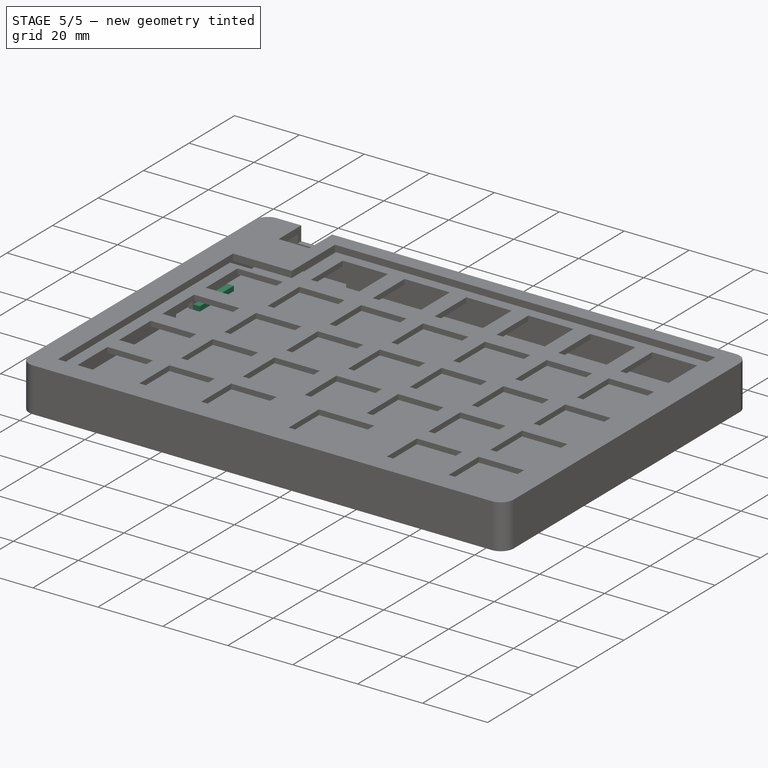
[diagram: stage 5 of 5 — iso view after this stage's code; geometry added in this stage tinted green]
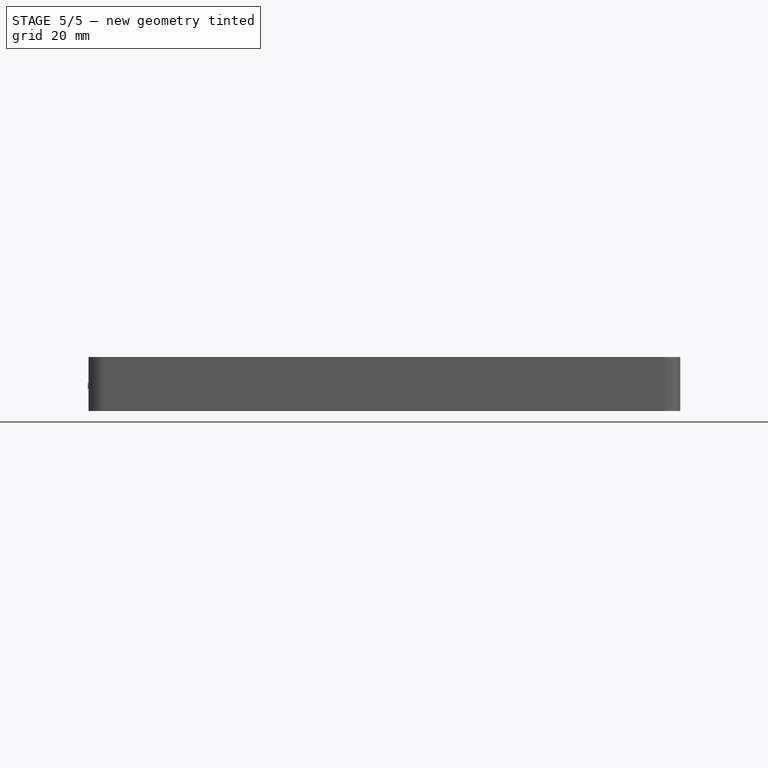
[diagram: stage 5 of 5 — front view after this stage's code; geometry added in this stage tinted green]
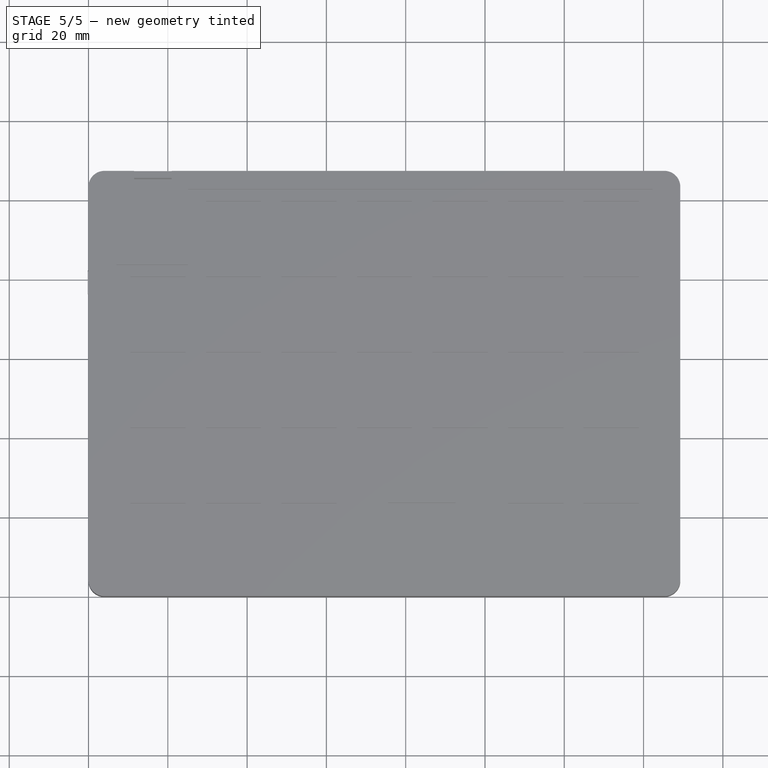
[diagram: stage 5 of 5 — top view after this stage's code; geometry added in this stage tinted green]
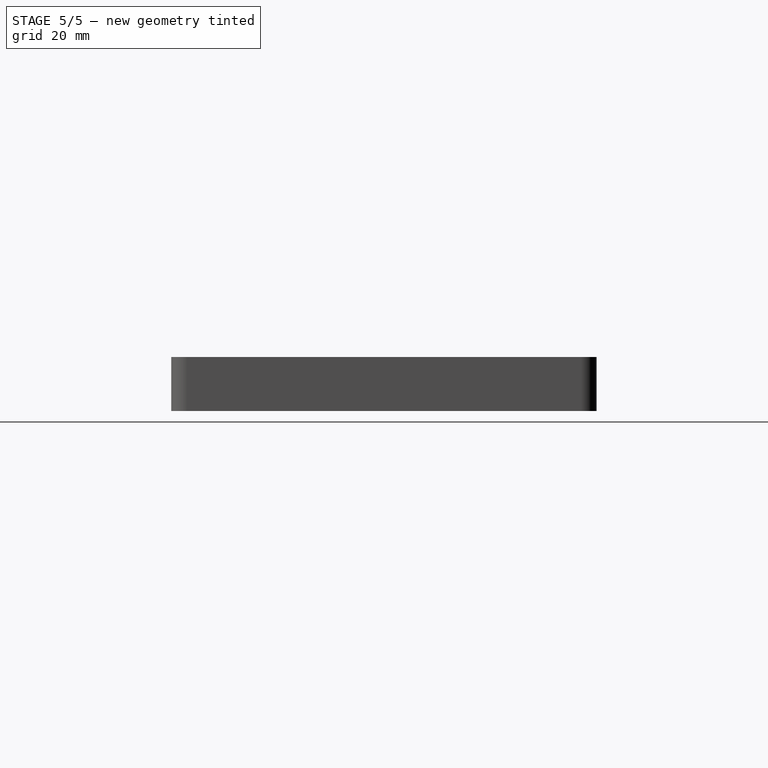
[diagram: stage 5 of 5 — right view after this stage's code; geometry added in this stage tinted green]
FEATURE [Sketcher::SketchObject] Sketch003
  ArcFitTolerance = 1e-06
  AttachmentSupport = -> [Pad002]
  ExternalGeometry = -> [Pad002]
  FullyConstrained = true
  MakeInternals = false
  MapMode = 5
  Placement = pos=(1.884e-13,0,0) rot=(0.57735,-0.57735,-0.57735;2.0944rad)
  sketch-geometry (4):
    g0: LineSegment StartX=-83.29 StartY=7.4 StartZ=0 EndX=-83.29 EndY=5.4 EndZ=0
    g1: LineSegment StartX=-83.29 StartY=5.4 StartZ=0 EndX=-73.29 EndY=5.4 EndZ=0
    g2: LineSegment StartX=-73.29 StartY=5.4 StartZ=0 EndX=-73.29 EndY=7.4 EndZ=0
    g3: LineSegment StartX=-73.29 StartY=7.4 StartZ=0 EndX=-83.29 EndY=7.4 EndZ=0
  constraints (12):
    c: Coincident(g0,g1)
    c: Coincident(g1,g2)
    c: Coincident(g2,g3)
    c: Coincident(g3,g0)
    c: Vertical(g0)
    c: Vertical(g2)
    c: Horizontal(g1)
    c: Horizontal(g3)
    c: Distance(g0,g2) = 10
    c: Distance(g1,g3) = 2
    c: PointOnObject(g0,g-4)
    c: DistanceX(g-3,g0) = 24
FEATURE [PartDesign::Pocket] Pocket
  BaseFeature = -> Pad002
  Direction = (1,3.2e-15,-4.16e-14)
  Length = 1.8
  Length2 = 5
  Profile = -> Sketch003
  ReferenceAxis = -> Sketch003 [N_Axis]
  Refine = true
  Suppressed = false
  Type = 0
FEATURE [Sketcher::SketchObject] Sketch004
  ArcFitTolerance = 1e-06
  AttachmentSupport = -> [Pocket]
  ExternalGeometry = -> [Pocket]
  FullyConstrained = true
  MakeInternals = false
  MapMode = 5
  Placement = pos=(0,0,2) rot=(0,0,1;0rad)
  sketch-geometry (7):
    g0: LineSegment StartX=3.8 StartY=85.79 StartZ=0 EndX=3.8 EndY=70.79 EndZ=0
    g1: LineSegment StartX=3.8 StartY=70.79 StartZ=0 EndX=5.8 EndY=70.79 EndZ=0
    g2: LineSegment StartX=5.8 StartY=70.79 StartZ=0 EndX=5.8 EndY=85.79 EndZ=0
    g3: LineSegment StartX=5.8 StartY=85.79 StartZ=0 EndX=3.8 EndY=85.79 EndZ=0
    g4: GeomPoint [constr] X=3.8 Y=78.29 Z=0
    g5: GeomPoint [constr] X=1.8 Y=78.29 Z=0
    g6: LineSegment [constr] StartX=1.8 StartY=78.29 StartZ=0 EndX=3.8 EndY=78.29 EndZ=0
  constraints (16):
    c: Coincident(g0,g1)
    c: Coincident(g1,g2)
    c: Coincident(g2,g3)
    c: Coincident(g3,g0)
    c: Vertical(g0)
    c: Vertical(g2)
    c: Horizontal(g1)
    c: Horizontal(g3)
    c: Distance(g0,g2) = 2
    c: Distance(g1,g3) = 15
    c: DistanceX(g-3,g0) = 2
    c: Symmetric(g0,g0,g4)
    c: Symmetric(g-3,g-3,g5)
    c: Coincident(g6,g5)
    c: Coincident(g6,g4)
    c: Horizontal(g6)
FEATURE [PartDesign::Pad] Pad003
  BaseFeature = -> Pocket
  Direction = (0,0,1)
  Length = 1.5
  Length2 = 10
  Profile = -> Sketch004
  ReferenceAxis = -> Sketch004 [N_Axis]
  Refine = true
  Suppressed = false
  Type = 0
FEATURE [Sketcher::SketchObject] Sketch005
  ArcFitTolerance = 1e-06
  AttachmentSupport = -> [Pad003]
  ExternalGeometry = -> [Pad003]
  FullyConstrained = true
  MakeInternals = false
  MapMode = 5
  Placement = pos=(147.46,0,0) rot=(0.57735,0.57735,0.57735;2.0944rad)
  sketch-geometry (8):
    g0: LineSegment StartX=8.8 StartY=7.4 StartZ=0 EndX=13.8 EndY=7.4 EndZ=0
    g1: LineSegment StartX=13.8 StartY=7.4 StartZ=0 EndX=13.8 EndY=8.9 EndZ=0
    g2: LineSegment StartX=13.8 StartY=8.9 StartZ=0 EndX=8.8 EndY=8.9 EndZ=0
    g3: LineSegment StartX=8.8 StartY=8.9 StartZ=0 EndX=8.8 EndY=7.4 EndZ=0
    g4: LineSegment StartX=93.49 StartY=7.4 StartZ=0 EndX=98.49 EndY=7.4 EndZ=0
    g5: LineSegment StartX=98.49 StartY=7.4 StartZ=0 EndX=98.49 EndY=8.9 EndZ=0
    g6: LineSegment StartX=98.49 StartY=8.9 StartZ=0 EndX=93.49 EndY=8.9 EndZ=0
    g7: LineSegment StartX=93.49 StartY=8.9 StartZ=0 EndX=93.49 EndY=7.4 EndZ=0
  constraints (24):
    c: Coincident(g0,g1)
    c: Coincident(g1,g2)
    c: Coincident(g2,g3)
    c: Coincident(g3,g0)
    c: Horizontal(g0)
    c: Horizontal(g2)
    c: Vertical(g1)
    c: Vertical(g3)
    c: Distance(g1,g3) = 5
    c: Distance(g0,g2) = 1.5
    c: PointOnObject(g0,g-3)
    c: DistanceX(g-5,g0) = 7
    c: Coincident(g4,g5)
    c: Coincident(g5,g6)
    c: Coincident(g6,g7)
    c: Coincident(g7,g4)
    c: Horizontal(g4)
    c: Horizontal(g6)
    c: Vertical(g5)
    c: Vertical(g7)
    c: Distance(g5,g7) = 5
    c: Distance(g4,g6) = 1.5
    c: PointOnObject(g4,g-3)
    c: DistanceX(g4,g-4) = 7
FEATURE [PartDesign::Pocket] Pocket001
  BaseFeature = -> Pad003
  Direction = (-1,0,0)
  Length = 1.2
  Length2 = 5
  Profile = -> Sketch005
  ReferenceAxis = -> Sketch005 [N_Axis]
  Refine = true
  Suppressed = false
  Type = 0
FEATURE [Sketcher::SketchObject] Sketch006
  ArcFitTolerance = 1e-06
  AttachmentSupport = -> [Pocket001]
  ExternalGeometry = -> [Pocket001]
  FullyConstrained = true
  MakeInternals = false
  MapMode = 5
  Placement = pos=(1.8,0,0) rot=(0.57735,-0.57735,-0.57735;2.0944rad)
  sketch-geometry (8):
    g0: LineSegment StartX=-56.55 StartY=7.4 StartZ=0 EndX=-51.55 EndY=7.4 EndZ=0
    g1: LineSegment StartX=-51.55 StartY=7.4 StartZ=0 EndX=-51.55 EndY=8.9 EndZ=0
    g2: LineSegment StartX=-51.55 StartY=8.9 StartZ=0 EndX=-56.55 EndY=8.9 EndZ=0
    g3: LineSegment StartX=-56.55 StartY=8.9 StartZ=0 EndX=-56.55 EndY=7.4 EndZ=0
    g4: LineSegment StartX=-13.8 StartY=7.4 StartZ=0 EndX=-8.8 EndY=7.4 EndZ=0
    g5: LineSegment StartX=-8.8 StartY=7.4 StartZ=0 EndX=-8.8 EndY=8.9 EndZ=0
    g6: LineSegment StartX=-8.8 StartY=8.9 StartZ=0 EndX=-13.8 EndY=8.9 EndZ=0
    g7: LineSegment StartX=-13.8 StartY=8.9 StartZ=0 EndX=-13.8 EndY=7.4 EndZ=0
  constraints (24):
    c: Coincident(g0,g1)
    c: Coincident(g1,g2)
    c: Coincident(g2,g3)
    c: Coincident(g3,g0)
    c: Horizontal(g0)
    c: Horizontal(g2)
    c: Vertical(g1)
    c: Vertical(g3)
    c: Distance(g1,g3) = 5
    c: Distance(g0,g2) = 1.5
    c: PointOnObject(g0,g-3)
    c: DistanceX(g-4,g0) = 7
    c: Coincident(g4,g5)
    c: Coincident(g5,g6)
    c: Coincident(g6,g7)
    c: Coincident(g7,g4)
    c: Horizontal(g4)
    c: Horizontal(g6)
    c: Vertical(g5)
    c: Vertical(g7)
    c: Distance(g5,g7) = 5
    c: Distance(g4,g6) = 1.5
    c: PointOnObject(g4,g-3)
    c: DistanceX(g4,g-5) = 7
FEATURE [PartDesign::Pocket] Pocket002
  BaseFeature = -> Pocket001
  Direction = (1,0,0)
  Length = 1.2
  Length2 = 5
  Profile = -> Sketch006
  ReferenceAxis = -> Sketch006 [N_Axis]
  Refine = true
  Suppressed = false
  Type = 0
FEATURE [Sketcher::SketchObject] Sketch007
  ArcFitTolerance = 1e-06
  AttachmentSupport = -> [Pocket002]
  ExternalGeometry = -> [Pocket002]
  FullyConstrained = true
  MakeInternals = false
  MapMode = 5
  Placement = pos=(0,105.49,0) rot=(0,0.707107,0.707107;3.14159rad)
  sketch-geometry (4):
    g0: LineSegment StartX=-39.8 StartY=7.4 StartZ=0 EndX=-34.8 EndY=7.4 EndZ=0
    g1: LineSegment StartX=-34.8 StartY=7.4 StartZ=0 EndX=-34.8 EndY=8.9 EndZ=0
    g2: LineSegment StartX=-34.8 StartY=8.9 StartZ=0 EndX=-39.8 EndY=8.9 EndZ=0
    g3: LineSegment StartX=-39.8 StartY=8.9 StartZ=0 EndX=-39.8 EndY=7.4 EndZ=0
  constraints (12):
    c: Coincident(g0,g1)
    c: Coincident(g1,g2)
    c: Coincident(g2,g3)
    c: Coincident(g3,g0)
    c: Horizontal(g0)
    c: Horizontal(g2)
    c: Vertical(g1)
    c: Vertical(g3)
    c: Distance(g1,g3) = 5
    c: Distance(g0,g2) = 1.5
    c: PointOnObject(g0,g-3)
    c: DistanceX(g0,g-4) = 7
FEATURE [PartDesign::Pocket] Pocket003
  BaseFeature = -> Pocket002
  Direction = (0,-1,2e-16)
  Length = 1.2
  Length2 = 5
  Profile = -> Sketch007
  ReferenceAxis = -> Sketch007 [N_Axis]
  Refine = true
  Suppressed = false
  Type = 0
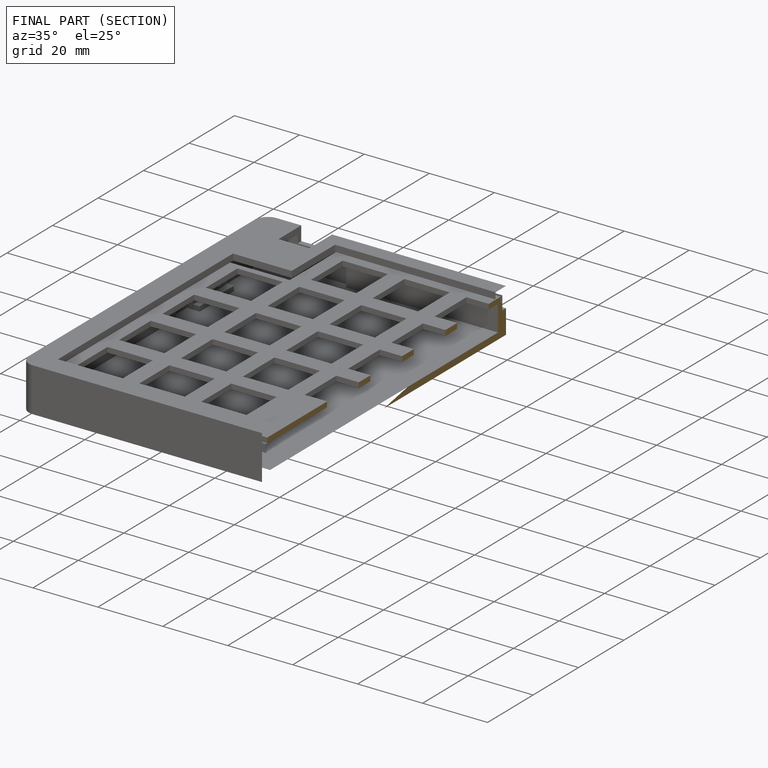
[diagram: finished part — half-section view (interior)]
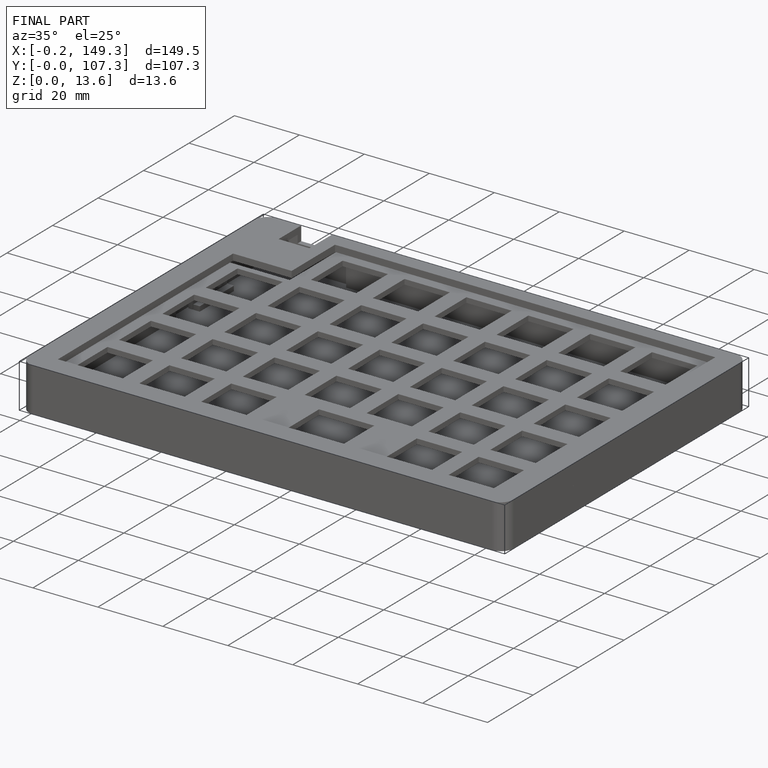
[diagram: finished part — iso view with bounding-box wireframe]
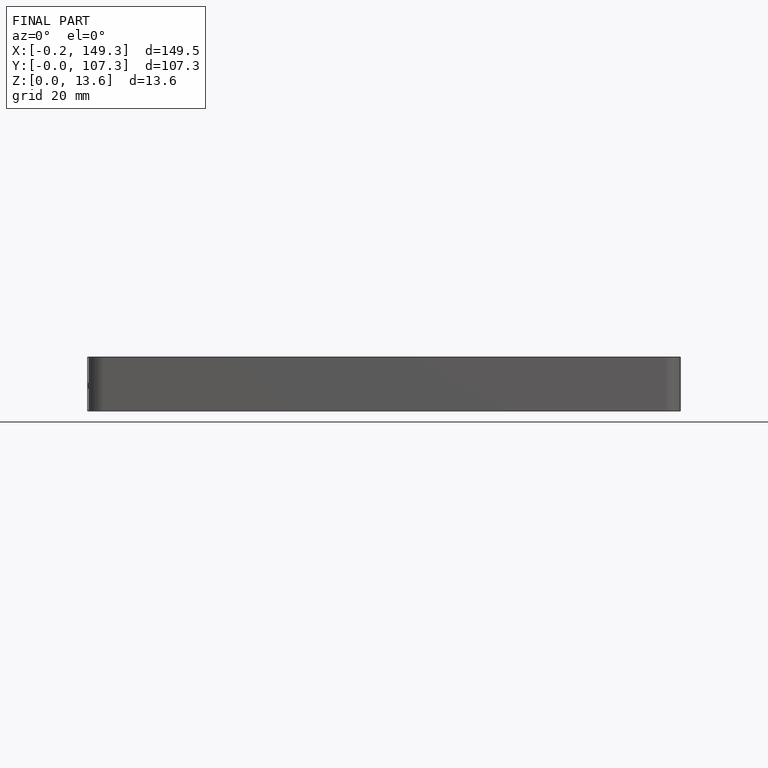
[diagram: finished part — front view with bounding-box wireframe]
